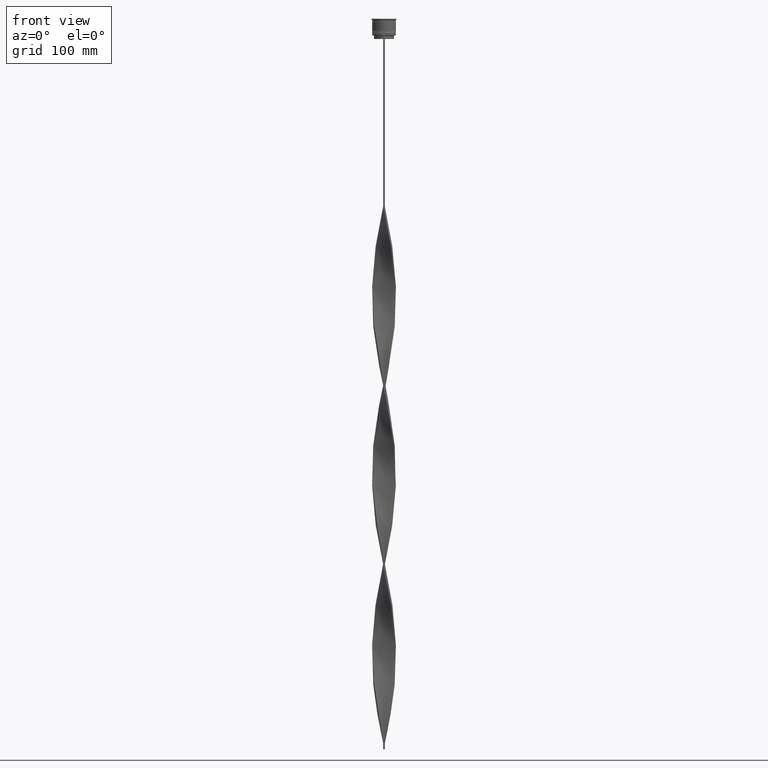
[diagram: clean part render]
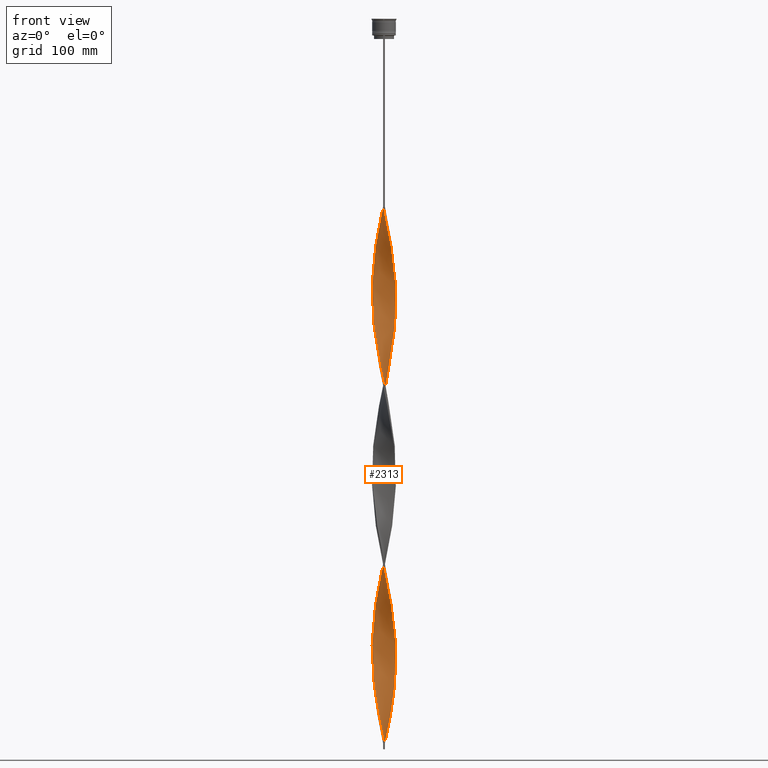
[diagram: same view with one face highlighted and labeled with its STEP entity id]
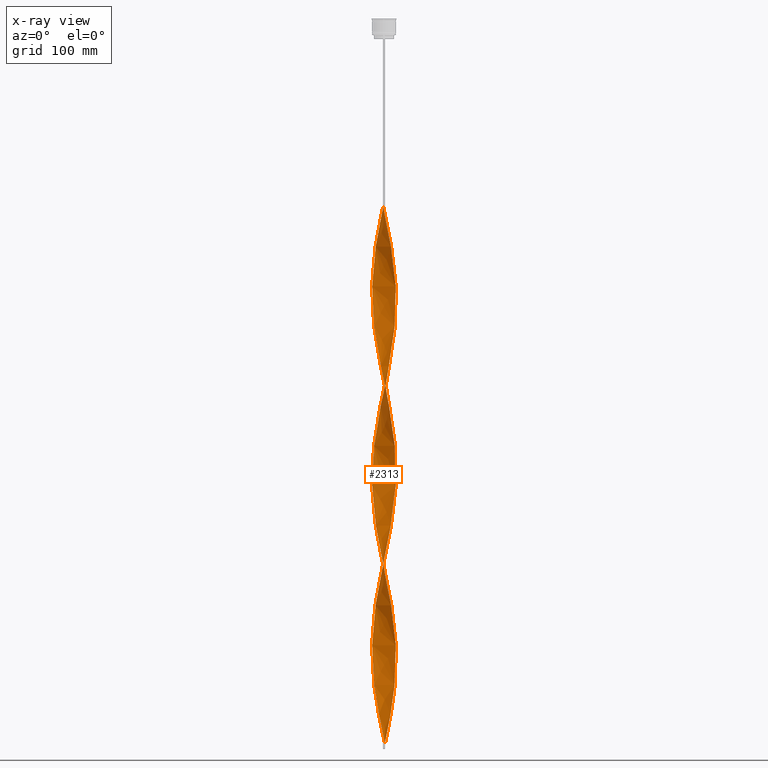
[diagram: x-ray of the same camera — body ghosted, the highlighted face saturated]
A machine part, front view. The second image highlights one B-rep face of the part: STEP entity #2313.
The next image is the same camera in x-ray: the body ghosted, the highlighted face saturated — about 0% of this face is hidden behind the body in this view.
In plain terms, the highlighted face is a freeform B-spline surface patch.
Its self-contained STEP definition (entity closure, byte-faithful):
#13 = CARTESIAN_POINT ( 'NONE',  ( -9.465143979063791235, -3.312634820742006880, -546.3611111111110858 ) ) ;
#21 = CARTESIAN_POINT ( 'NONE',  ( 8.750108451655698616, 4.942682784217356406, -562.0208333333331439 ) ) ;
#35 = CARTESIAN_POINT ( 'NONE',  ( -6.540737725975564132, -7.601397897755384214, -571.4166666666666288 ) ) ;
#39 = CARTESIAN_POINT ( 'NONE',  ( -9.975528918694857694, 1.217921924187934213, -223.7708333333332860 ) ) ;
#40 = CARTESIAN_POINT ( 'NONE',  ( 1.217921924187935101, -9.975528918694866576, -468.0624999999999432 ) ) ;
#62 = CARTESIAN_POINT ( 'NONE',  ( -3.312634820742007769, 9.465143979063791235, -170.5277777777777430 ) ) ;
#63 = CARTESIAN_POINT ( 'NONE',  ( -8.390104474668900636, -5.492599284868775911, -414.8194444444444002 ) ) ;
#86 = CARTESIAN_POINT ( 'NONE',  ( -9.035254037844385522, 4.350480947161671885, -208.1111111111110858 ) ) ;
#87 = CARTESIAN_POINT ( 'NONE',  ( 9.950842402888577354, -1.405434628152383958, -530.7013888888888005 ) ) ;
#109 = CARTESIAN_POINT ( 'NONE',  ( 5.106474812894070681, -8.655543079808074580, -330.2569444444443434 ) ) ;
#111 = CARTESIAN_POINT ( 'NONE',  ( 3.933013133174656506, 9.248022421870029319, -593.3402777777778283 ) ) ;
#112 = CARTESIAN_POINT ( 'NONE',  ( 10.00000000000000533, -0.7500000000000005551, -233.1666666666666288 ) ) ;
#120 = CARTESIAN_POINT ( 'NONE',  ( -0.09456537184761724946, -10.04915759711143508, -161.1319444444444002 ) ) ;
#128 = CARTESIAN_POINT ( 'NONE',  ( -0.09456537184761161507, 10.04915759711142798, -455.5347222222221149 ) ) ;
#129 = CARTESIAN_POINT ( 'NONE',  ( -8.030100497682088445, 6.042515785520206073, -198.7152777777777430 ) ) ;
#130 = CARTESIAN_POINT ( 'NONE',  ( -5.492599284868780352, 8.390104474668897083, -339.6527777777777715 ) ) ;
#151 = CARTESIAN_POINT ( 'NONE',  ( -5.492599284868781240, -8.390104474668889978, -277.0138888888889142 ) ) ;
#152 = CARTESIAN_POINT ( 'NONE',  ( -2.509570238428880273, -9.731216174740287883, -292.6736111111110290 ) ) ;
#153 = CARTESIAN_POINT ( 'NONE',  ( 3.312634820742012653, 9.465143979063796564, -295.8055555555555429 ) ) ;
#171 = CARTESIAN_POINT ( 'NONE',  ( 4.519743973034366036, 8.951782750839054614, -289.5416666666666288 ) ) ;
#183 = CARTESIAN_POINT ( 'NONE',  ( 9.525807899386681044, -3.133924674267438260, -364.7083333333333144 ) ) ;
#184 = CARTESIAN_POINT ( 'NONE',  ( -1.405434628152381515, 9.950842402888570248, -161.1319444444444002 ) ) ;
#185 = CARTESIAN_POINT ( 'NONE',  ( -9.465143979063794788, 3.312634820742017538, -370.9722222222222285 ) ) ;
#195 = CARTESIAN_POINT ( 'NONE',  ( 7.601397897755390431, 6.540737725975568573, -270.7500000000000000 ) ) ;
#205 = CARTESIAN_POINT ( 'NONE',  ( -4.350480947161673662, -9.035254037844383745, -283.2777777777777146 ) ) ;
#206 = CARTESIAN_POINT ( 'NONE',  ( -3.933013133174652065, 9.248022421870022214, -173.6597222222221717 ) ) ;
#207 = CARTESIAN_POINT ( 'NONE',  ( -9.248022421870027543, 3.933013133174656062, -367.8402777777777146 ) ) ;
#213 = CARTESIAN_POINT ( 'NONE',  ( -4.350480947161671885, 9.035254037844394404, -333.3888888888888573 ) ) ;
#223 = CARTESIAN_POINT ( 'NONE',  ( 9.320399624033075980, -3.758279110105986032, -361.5763888888888005 ) ) ;
#224 = CARTESIAN_POINT ( 'NONE',  ( 8.655543079808079909, -5.106474812894076898, -511.9097222222220580 ) ) ;
#249 = CARTESIAN_POINT ( 'NONE',  ( 9.816553969573064364, 2.048845568230869940, -389.7638888888889142 ) ) ;
#250 = CARTESIAN_POINT ( 'NONE',  ( 9.465143979063796564, -3.312634820742011765, -521.3055555555554292 ) ) ;
#264 = CARTESIAN_POINT ( 'NONE',  ( -4.942682784217359071, -8.750108451655691510, -580.8124999999998863 ) ) ;
#265 = CARTESIAN_POINT ( 'NONE',  ( 7.476962331155815988, 6.682629295305624773, -414.8194444444444002 ) ) ;
#266 = CARTESIAN_POINT ( 'NONE',  ( 9.731216174740296765, 2.509570238428878053, -549.4930555555554292 ) ) ;
#280 = CARTESIAN_POINT ( 'NONE',  ( -8.285254037844385522, -5.649519052838325450, -558.8888888888889142 ) ) ;
#281 = CARTESIAN_POINT ( 'NONE',  ( 4.350480947161674550, 9.035254037844383745, -433.6111111111110858 ) ) ;
#282 = CARTESIAN_POINT ( 'NONE',  ( -5.649519052838336108, -8.285254037844387298, -433.6111111111110858 ) ) ;
#287 = CARTESIAN_POINT ( 'NONE',  ( -7.476962331155814212, 6.682629295305638095, -352.1805555555554861 ) ) ;
#308 = CARTESIAN_POINT ( 'NONE',  ( -9.465143979063791235, -3.312634820742006880, -546.3611111111110858 ) ) ;
#309 = CARTESIAN_POINT ( 'NONE',  ( 10.01234325790314195, -0.5616782761701673010, -377.2361111111110858 ) ) ;
#310 = CARTESIAN_POINT ( 'NONE',  ( -9.320399624033083086, -3.758279110105986032, -405.4236111111110858 ) ) ;
#315 = CARTESIAN_POINT ( 'NONE',  ( 7.038959666430927520, -7.172695297828685312, -198.7152777777777430 ) ) ;
#331 = LINE ( 'NONE', #759, #829 ) ;
#333 = CARTESIAN_POINT ( 'NONE',  ( 1.405434628152387289, 9.950842402888575577, -605.8680555555555429 ) ) ;
#337 = CARTESIAN_POINT ( 'NONE',  ( -9.465143979063791235, -3.312634820742006880, -245.6944444444444287 ) ) ;
#338 = CARTESIAN_POINT ( 'NONE',  ( 2.509570238428880273, -9.731216174740296765, -474.3263888888889142 ) ) ;
#350 = DIRECTION ( 'NONE',  ( 0.000000000000000000, 1.000000000000000000, 0.000000000000000000 ) ) ;
#352 = CARTESIAN_POINT ( 'NONE',  ( -10.04915759711142798, -0.09456537184761565351, -530.7013888888888005 ) ) ;
#358 = CARTESIAN_POINT ( 'NONE',  ( 9.816553969573071470, -2.048845568230875269, -527.5694444444444571 ) ) ;
#382 = CARTESIAN_POINT ( 'NONE',  ( -4.519743973034361595, 8.951782750839049285, -176.7916666666666572 ) ) ;
#383 = CARTESIAN_POINT ( 'NONE',  ( -9.731216174740296765, -2.509570238428879385, -399.1597222222221149 ) ) ;
#384 = CARTESIAN_POINT ( 'NONE',  ( 3.758279110105988696, -9.320399624033083086, -179.9236111111110574 ) ) ;
#398 = CARTESIAN_POINT ( 'NONE',  ( -7.914964995880700016, -6.192563292782582884, -562.0208333333331439 ) ) ;
#403 = CARTESIAN_POINT ( 'NONE',  ( -9.248022421870029319, 3.933013133174656506, -367.8402777777777146 ) ) ;
#417 = CARTESIAN_POINT ( 'NONE',  ( -6.042515785520206073, -8.030100497682088445, -574.5486111111111995 ) ) ;
#421 = CARTESIAN_POINT ( 'NONE',  ( -0.7499999999999997780, 9.999999999999998224, -157.9999999999999716 ) ) ;
#422 = CARTESIAN_POINT ( 'NONE',  ( 8.655543079808081686, -5.106474812894077786, -511.9097222222220580 ) ) ;
#424 =( BOUNDED_CURVE ( )  B_SPLINE_CURVE ( 2, ( #421, #2485, #2814, #1436, #62, #1130, #382, #3954, #2901, #3552, #2504, #788, #2466, #3182, #1783, #3243, #86, #1419, #4238, #1039, #2837, #39, #3885, #719, #3864, #1485, #2118, #2098, #337, #4256, #3904, #2856, #2445, #3530, #3509, #740, #4278, #699, #151, #474, #205, #1149, #3697, #3974, #882, #905, #2979, #1930, #1584, #2280, #1879, #1242, #521, #450, #4072, #109, #2309, #1528, #1220, #3650, #1199, #3003, #551, #4049, #3351, #2548, #183, #1560, #1172, #3723, #2205, #3372, #1950, #1607, #4325, #836, #2598, #4421, #1853, #809, #4394, #497, #3618, #3675, #1507, #3272, #2646, #2923, #4344, #2569, #4029, #3998, #2622, #2235, #3296, #128, #2945, #4367, #3318, #863, #2259, #1901, #1348, #3084, #3455, #3791, #639, #952, #970, #3436, #3068, #994, #1973, #3049, #3394, #3764, #4139, #4487, #4444, #2416, #3417, #2376, #4504, #2351, #308, #2041, #1667, #4181, #280, #571, #1623, #621, #1013, #1306, #3743, #264, #2397, #3810, #2023, #1685, #3025, #3107, #4528, #3480, #2714 ),
 .UNSPECIFIED., .F., .T. ) 
 B_SPLINE_CURVE_WITH_KNOTS ( ( 3, 2, 2, 2, 2, 2, 2, 2, 2, 2, 2, 2, 2, 2, 2, 2, 2, 2, 2, 2, 2, 2, 2, 2, 2, 2, 2, 2, 2, 2, 2, 2, 2, 2, 2, 2, 2, 2, 2, 2, 2, 2, 2, 2, 2, 2, 2, 2, 2, 2, 2, 2, 2, 2, 2, 2, 2, 2, 2, 2, 2, 2, 2, 2, 2, 2, 2, 2, 2, 2, 2, 2, 3 ),
 ( 0.000000000000000000, 0.01041666666666666609, 0.02083333333333333218, 0.03125000000000000000, 0.04166666666666666435, 0.05208333333333333565, 0.06250000000000000000, 0.07291666666666667129, 0.08333333333333332871, 0.09375000000000000000, 0.1041666666666666713, 0.1145833333333333287, 0.1250000000000000000, 0.1354166666666666574, 0.1458333333333333426, 0.1562500000000000000, 0.1666666666666666574, 0.1770833333333333426, 0.1875000000000000000, 0.1979166666666666574, 0.2083333333333333426, 0.2187500000000000000, 0.2291666666666666574, 0.2395833333333333426, 0.2500000000000000000, 0.2604166666666666852, 0.2708333333333333148, 0.2812500000000000000, 0.2916666666666666852, 0.3020833333333333148, 0.3125000000000000000, 0.3229166666666666852, 0.3333333333333333148, 0.3437500000000000000, 0.3541666666666666852, 0.3645833333333333148, 0.3750000000000000000, 0.3854166666666666852, 0.3958333333333333148, 0.4062500000000000000, 0.4166666666666666852, 0.4270833333333333148, 0.4375000000000000000, 0.4479166666666666852, 0.4583333333333333148, 0.4687500000000000000, 0.4791666666666666852, 0.4895833333333333148, 0.5000000000000000000, 0.5104166666666666297, 0.5208333333333333703, 0.5312500000000000000, 0.5416666666666666297, 0.5520833333333333703, 0.5625000000000000000, 0.5729166666666666297, 0.5833333333333333703, 0.5937500000000000000, 0.6041666666666666297, 0.6145833333333333703, 0.6250000000000000000, 0.6354166666666666297, 0.6458333333333333703, 0.6562500000000000000, 0.6666666666666666297, 0.6770833333333333703, 0.6875000000000000000, 0.6979166666666666297, 0.7083333333333333703, 0.7187500000000000000, 0.7291666666666666297, 0.7395833333333333703, 0.7500000000000000000 ),
 .UNSPECIFIED. ) 
 CURVE ( )  GEOMETRIC_REPRESENTATION_ITEM ( )  RATIONAL_B_SPLINE_CURVE ( ( 1.000000000000000000, 0.9978589232386034791, 1.000000000000000000, 0.9978589232386034791, 1.000000000000000000, 0.9978589232386034791, 1.000000000000000000, 0.9978589232386034791, 1.000000000000000000, 0.9978589232386034791, 1.000000000000000000, 0.9978589232386034791, 1.000000000000000000, 0.9978589232386034791, 1.000000000000000000, 0.9978589232386034791, 1.000000000000000000, 0.9978589232386034791, 1.000000000000000000, 0.9978589232386034791, 1.000000000000000000, 0.9978589232386034791, 1.000000000000000000, 0.9978589232386034791, 1.000000000000000000, 0.9978589232386034791, 1.000000000000000000, 0.9978589232386034791, 1.000000000000000000, 0.9978589232386034791, 1.000000000000000000, 0.9978589232386034791, 1.000000000000000000, 0.9978589232386034791, 1.000000000000000000, 0.9978589232386034791, 1.000000000000000000, 0.9978589232386034791, 1.000000000000000000, 0.9978589232386034791, 1.000000000000000000, 0.9978589232386034791, 1.000000000000000000, 0.9978589232386034791, 1.000000000000000000, 0.9978589232386034791, 1.000000000000000000, 0.9978589232386034791, 1.000000000000000000, 0.9978589232386034791, 1.000000000000000000, 0.9978589232386034791, 1.000000000000000000, 0.9978589232386034791, 1.000000000000000000, 0.9978589232386034791, 1.000000000000000000, 0.9978589232386034791, 1.000000000000000000, 0.9978589232386034791, 1.000000000000000000, 0.9978589232386034791, 1.000000000000000000, 0.9978589232386034791, 1.000000000000000000, 0.9978589232386034791, 1.000000000000000000, 0.9978589232386034791, 1.000000000000000000, 0.9978589232386034791, 1.000000000000000000, 0.9978589232386034791, 1.000000000000000000, 0.9978589232386034791, 1.000000000000000000, 0.9978589232386034791, 1.000000000000000000, 0.9978589232386034791, 1.000000000000000000, 0.9978589232386034791, 1.000000000000000000, 0.9978589232386034791, 1.000000000000000000, 0.9978589232386034791, 1.000000000000000000, 0.9978589232386034791, 1.000000000000000000, 0.9978589232386034791, 1.000000000000000000, 0.9978589232386034791, 1.000000000000000000, 0.9978589232386034791, 1.000000000000000000, 0.9978589232386034791, 1.000000000000000000, 0.9978589232386034791, 1.000000000000000000, 0.9978589232386034791, 1.000000000000000000, 0.9978589232386034791, 1.000000000000000000, 0.9978589232386034791, 1.000000000000000000, 0.9978589232386034791, 1.000000000000000000, 0.9978589232386034791, 1.000000000000000000, 0.9978589232386034791, 1.000000000000000000, 0.9978589232386034791, 1.000000000000000000, 0.9978589232386034791, 1.000000000000000000, 0.9978589232386034791, 1.000000000000000000, 0.9978589232386034791, 1.000000000000000000, 0.9978589232386034791, 1.000000000000000000, 0.9978589232386034791, 1.000000000000000000, 0.9978589232386034791, 1.000000000000000000, 0.9978589232386034791, 1.000000000000000000, 0.9978589232386034791, 1.000000000000000000, 0.9978589232386034791, 1.000000000000000000, 0.9978589232386034791, 1.000000000000000000, 0.9978589232386034791, 1.000000000000000000, 0.9978589232386034791, 1.000000000000000000, 0.9978589232386034791, 1.000000000000000000, 0.9978589232386034791, 1.000000000000000000, 0.9978589232386034791, 1.000000000000000000, 0.9978589232386034791, 1.000000000000000000, 0.9978589232386034791, 1.000000000000000000 ) ) 
 REPRESENTATION_ITEM ( '' )  );
#450 = CARTESIAN_POINT ( 'NONE',  ( 3.933013133174646736, -9.248022421870025767, -323.9930555555555998 ) ) ;
#451 = CARTESIAN_POINT ( 'NONE',  ( -9.465143979063791235, -3.312634820742006880, -245.6944444444444287 ) ) ;
#474 = CARTESIAN_POINT ( 'NONE',  ( -4.942682784217359071, -8.750108451655691510, -280.1458333333333144 ) ) ;
#475 = CARTESIAN_POINT ( 'NONE',  ( -1.863746081308408575, -9.853372546717571012, -295.8055555555555429 ) ) ;
#476 = CARTESIAN_POINT ( 'NONE',  ( 9.525807899386691702, 3.133924674267432042, -251.9583333333332860 ) ) ;
#497 = CARTESIAN_POINT ( 'NONE',  ( 7.914964995880699128, 6.192563292782581108, -411.6875000000000000 ) ) ;
#498 = CARTESIAN_POINT ( 'NONE',  ( 1.405434628152387067, 9.950842402888577354, -605.8680555555556566 ) ) ;
#499 = CARTESIAN_POINT ( 'NONE',  ( -7.914964995880697352, 6.192563292782595319, -355.3124999999999432 ) ) ;
#521 = CARTESIAN_POINT ( 'NONE',  ( 3.312634820742003772, -9.465143979063794788, -320.8611111111110858 ) ) ;
#522 = CARTESIAN_POINT ( 'NONE',  ( -9.950842402888570248, -1.405434628152380183, -236.2986111111110574 ) ) ;
#524 = CARTESIAN_POINT ( 'NONE',  ( 9.816553969573071470, -2.048845568230875713, -226.9027777777777715 ) ) ;
#536 = CARTESIAN_POINT ( 'NONE',  ( 0.7500000000000011102, 10.00000000000000533, -609.0000000000000000 ) ) ;
#542 = CARTESIAN_POINT ( 'NONE',  ( 9.035254037844392627, 4.350480947161671885, -258.2222222222221717 ) ) ;
#551 = CARTESIAN_POINT ( 'NONE',  ( 8.390104474668889978, -5.492599284868781240, -352.1805555555554861 ) ) ;
#552 = CARTESIAN_POINT ( 'NONE',  ( -9.731216174740287883, 2.509570238428879385, -217.5069444444443718 ) ) ;
#553 = CARTESIAN_POINT ( 'NONE',  ( 4.519743973034366036, 8.951782750839054614, -289.5416666666666288 ) ) ;
#562 = CARTESIAN_POINT ( 'NONE',  ( 6.192563292782590878, 7.914964995880701792, -280.1458333333333144 ) ) ;
#571 = CARTESIAN_POINT ( 'NONE',  ( -7.914964995880699128, -6.192563292782581996, -562.0208333333331439 ) ) ;
#572 = CARTESIAN_POINT ( 'NONE',  ( 2.048845568230870828, -9.816553969573064364, -314.5972222222221717 ) ) ;
#573 = CARTESIAN_POINT ( 'NONE',  ( 8.285254037844389075, -5.649519052838332556, -508.7777777777777715 ) ) ;
#594 = CARTESIAN_POINT ( 'NONE',  ( -8.390104474668891754, 5.492599284868779463, -502.5138888888889142 ) ) ;
#595 = CARTESIAN_POINT ( 'NONE',  ( 2.509570238428879829, -9.731216174740296765, -474.3263888888889142 ) ) ;
#621 = CARTESIAN_POINT ( 'NONE',  ( -7.038959666430926632, -7.172695297828676431, -568.2847222222221717 ) ) ;
#623 = CARTESIAN_POINT ( 'NONE',  ( -5.106474812894072457, 8.655543079808076357, -480.5902777777776578 ) ) ;
#624 = CARTESIAN_POINT ( 'NONE',  ( 9.248022421870027543, -3.933013133174655174, -518.1736111111110858 ) ) ;
#639 = CARTESIAN_POINT ( 'NONE',  ( -6.682629295305630102, 7.476962331155812436, -489.9861111111111427 ) ) ;
#640 = CARTESIAN_POINT ( 'NONE',  ( 7.601397897755380662, -6.540737725975567685, -345.9166666666666288 ) ) ;
#641 = CARTESIAN_POINT ( 'NONE',  ( 6.682629295305638095, 7.476962331155813324, -577.6805555555555429 ) ) ;
#649 = CARTESIAN_POINT ( 'NONE',  ( 9.248022421870029319, -3.933013133174655618, -217.5069444444443718 ) ) ;
#662 = CARTESIAN_POINT ( 'NONE',  ( -9.320399624033075980, 3.758279110105987808, -511.9097222222220580 ) ) ;
#663 = CARTESIAN_POINT ( 'NONE',  ( 5.492599284868782128, -8.390104474668898860, -489.9861111111111427 ) ) ;
#669 = CARTESIAN_POINT ( 'NONE',  ( -7.914964995880697352, 6.192563292782595319, -355.3124999999998863 ) ) ;
#687 = CARTESIAN_POINT ( 'NONE',  ( 0.7500000000000011102, 10.00000000000000533, -609.0000000000000000 ) ) ;
#694 = CARTESIAN_POINT ( 'NONE',  ( -4.350480947161673662, -9.035254037844383745, -583.9444444444443434 ) ) ;
#695 = CARTESIAN_POINT ( 'NONE',  ( 3.933013133174656062, 9.248022421870027543, -593.3402777777777146 ) ) ;
#699 = CARTESIAN_POINT ( 'NONE',  ( -6.042515785520205185, -8.030100497682088445, -273.8819444444443434 ) ) ;
#700 = CARTESIAN_POINT ( 'NONE',  ( 9.682265536257565586, -2.692256508309367025, -223.7708333333332575 ) ) ;
#719 = CARTESIAN_POINT ( 'NONE',  ( -10.04915759711142798, -0.09456537184761565351, -230.0347222222222001 ) ) ;
#720 = CARTESIAN_POINT ( 'NONE',  ( -9.035254037844394404, -4.350480947161667444, -408.5555555555555429 ) ) ;
#735 = CARTESIAN_POINT ( 'NONE',  ( -9.999999999999998224, -0.7499999999999991118, -533.8333333333333712 ) ) ;
#740 = CARTESIAN_POINT ( 'NONE',  ( -7.038959666430926632, -7.172695297828676431, -267.6180555555554861 ) ) ;
#741 = CARTESIAN_POINT ( 'NONE',  ( 9.465143979063796564, -3.312634820742011765, -521.3055555555554292 ) ) ;
#759 = CARTESIAN_POINT ( 'NONE',  ( -0.7499999999999997780, -10.00000000000000533, -157.9999999999999716 ) ) ;
#760 = CARTESIAN_POINT ( 'NONE',  ( -5.492599284868781240, -8.390104474668889978, -577.6805555555555429 ) ) ;
#769 = CARTESIAN_POINT ( 'NONE',  ( -9.465143979063794788, 3.312634820742017538, -370.9722222222222285 ) ) ;
#788 = CARTESIAN_POINT ( 'NONE',  ( -7.172695297828679983, 7.038959666430923079, -192.4513888888888289 ) ) ;
#789 = CARTESIAN_POINT ( 'NONE',  ( -8.030100497682097327, -6.042515785520205185, -417.9513888888888005 ) ) ;
#809 = CARTESIAN_POINT ( 'NONE',  ( 8.655543079808074580, 5.106474812894070681, -405.4236111111110858 ) ) ;
#810 = CARTESIAN_POINT ( 'NONE',  ( 9.731216174740296765, 2.509570238428878497, -549.4930555555553156 ) ) ;
#829 = VECTOR ( 'NONE', #350, 1000.000000000000000 ) ;
#836 = CARTESIAN_POINT ( 'NONE',  ( 9.682265536257562033, 2.692256508309355922, -392.8958333333332575 ) ) ;
#837 = CARTESIAN_POINT ( 'NONE',  ( -7.172695297828679983, 7.038959666430923967, -192.4513888888888289 ) ) ;
#838 = CARTESIAN_POINT ( 'NONE',  ( 6.540737725975569461, -7.601397897755390431, -195.5833333333333144 ) ) ;
#863 = CARTESIAN_POINT ( 'NONE',  ( -2.692256508309364360, 9.682265536257558480, -468.0624999999999432 ) ) ;
#864 = CARTESIAN_POINT ( 'NONE',  ( 6.192563292782590878, 7.914964995880701792, -580.8124999999998863 ) ) ;
#865 = CARTESIAN_POINT ( 'NONE',  ( -7.038959666430926632, 7.172695297828686201, -349.0486111111110858 ) ) ;
#882 = CARTESIAN_POINT ( 'NONE',  ( -1.863746081308408575, -9.853372546717571012, -295.8055555555555429 ) ) ;
#884 = CARTESIAN_POINT ( 'NONE',  ( -9.525807899386684596, 3.133924674267432930, -214.3749999999999716 ) ) ;
#885 = CARTESIAN_POINT ( 'NONE',  ( 1.405434628152387289, 9.950842402888575577, -305.2013888888888573 ) ) ;
#893 = CARTESIAN_POINT ( 'NONE',  ( 6.042515785520209626, -8.030100497682095551, -192.4513888888888289 ) ) ;
#905 = CARTESIAN_POINT ( 'NONE',  ( -1.217921924187937099, -9.975528918694857694, -298.9374999999999432 ) ) ;
#906 = CARTESIAN_POINT ( 'NONE',  ( 0.7499999999999985567, -9.999999999999998224, -308.3333333333333712 ) ) ;
#908 = CARTESIAN_POINT ( 'NONE',  ( 10.04915759711143508, -0.09456537184761866499, -236.2986111111110574 ) ) ;
#923 = CARTESIAN_POINT ( 'NONE',  ( 9.465143979063796564, -3.312634820742011765, -220.6388888888888857 ) ) ;
#932 = CARTESIAN_POINT ( 'NONE',  ( -2.692256508309364360, 9.682265536257558480, -468.0624999999999432 ) ) ;
#933 = CARTESIAN_POINT ( 'NONE',  ( -1.863746081308403468, 9.853372546717578118, -320.8611111111110858 ) ) ;
#952 = CARTESIAN_POINT ( 'NONE',  ( -7.172695297828679983, 7.038959666430923079, -493.1180555555555429 ) ) ;
#953 = CARTESIAN_POINT ( 'NONE',  ( -3.933013133174652065, 9.248022421870022214, -474.3263888888889142 ) ) ;
#954 = CARTESIAN_POINT ( 'NONE',  ( -9.035254037844394404, -4.350480947161666556, -408.5555555555555429 ) ) ;
#970 = CARTESIAN_POINT ( 'NONE',  ( -7.601397897755385102, 6.540737725975564132, -496.2499999999999432 ) ) ;
#971 = CARTESIAN_POINT ( 'NONE',  ( 7.172695297828676431, -7.038959666430927520, -342.7847222222222285 ) ) ;
#972 = CARTESIAN_POINT ( 'NONE',  ( 7.038959666430926632, -7.172695297828685312, -499.3819444444444002 ) ) ;
#994 = CARTESIAN_POINT ( 'NONE',  ( -8.750108451655689734, 4.942682784217357295, -505.6458333333333712 ) ) ;
#995 = CARTESIAN_POINT ( 'NONE',  ( 9.950842402888573801, 1.405434628152374854, -386.6319444444444571 ) ) ;
#996 = CARTESIAN_POINT ( 'NONE',  ( -3.312634820742017983, -9.465143979063794788, -446.1388888888888573 ) ) ;
#1002 = CARTESIAN_POINT ( 'NONE',  ( 9.320399624033084862, 3.758279110105986920, -255.0902777777776862 ) ) ;
#1011 = CARTESIAN_POINT ( 'NONE',  ( 0.7499999999999985567, -9.999999999999998224, -609.0000000000000000 ) ) ;
#1013 = CARTESIAN_POINT ( 'NONE',  ( -6.540737725975564132, -7.601397897755384214, -571.4166666666666288 ) ) ;
#1014 = CARTESIAN_POINT ( 'NONE',  ( -7.601397897755385102, 6.540737725975564132, -496.2499999999999432 ) ) ;
#1015 = CARTESIAN_POINT ( 'NONE',  ( 6.042515785520208738, -8.030100497682095551, -493.1180555555555429 ) ) ;
#1021 = CARTESIAN_POINT ( 'NONE',  ( 2.048845568230878378, 9.816553969573071470, -302.0694444444444002 ) ) ;
#1034 = CARTESIAN_POINT ( 'NONE',  ( -9.816553969573064364, -2.048845568230871272, -540.0972222222221717 ) ) ;
#1035 = CARTESIAN_POINT ( 'NONE',  ( 6.540737725975569461, -7.601397897755390431, -496.2499999999999432 ) ) ;
#1039 = CARTESIAN_POINT ( 'NONE',  ( -9.731216174740287883, 2.509570238428879385, -217.5069444444443718 ) ) ;
#1040 = CARTESIAN_POINT ( 'NONE',  ( 4.350480947161672773, -9.035254037844392627, -183.0555555555555145 ) ) ;
#1060 = CARTESIAN_POINT ( 'NONE',  ( -2.509570238428880273, -9.731216174740287883, -593.3402777777778283 ) ) ;
#1061 = CARTESIAN_POINT ( 'NONE',  ( 5.649519052838335220, 8.285254037844389075, -583.9444444444443434 ) ) ;
#1066 = CARTESIAN_POINT ( 'NONE',  ( 9.248022421870029319, -3.933013133174655618, -518.1736111111110858 ) ) ;
#1080 = CARTESIAN_POINT ( 'NONE',  ( -9.950842402888570248, -1.405434628152380183, -536.9652777777778283 ) ) ;
#1085 = CARTESIAN_POINT ( 'NONE',  ( 5.492599284868782128, -8.390104474668898860, -489.9861111111111427 ) ) ;
#1086 = CARTESIAN_POINT ( 'NONE',  ( 2.509570238428879829, -9.731216174740296765, -173.6597222222221717 ) ) ;
#1106 = CARTESIAN_POINT ( 'NONE',  ( -9.950842402888577354, 1.405434628152387511, -380.3680555555554861 ) ) ;
#1130 = CARTESIAN_POINT ( 'NONE',  ( -3.933013133174651621, 9.248022421870022214, -173.6597222222221717 ) ) ;
#1132 = CARTESIAN_POINT ( 'NONE',  ( -5.106474812894085780, -8.655543079808074580, -436.7430555555554861 ) ) ;
#1149 = CARTESIAN_POINT ( 'NONE',  ( -3.758279110105989584, -9.320399624033075980, -286.4097222222221717 ) ) ;
#1150 = CARTESIAN_POINT ( 'NONE',  ( 10.04915759711143508, -0.09456537184761855397, -536.9652777777778283 ) ) ;
#1172 = CARTESIAN_POINT ( 'NONE',  ( 9.853372546717571012, -1.863746081308413904, -370.9722222222222285 ) ) ;
#1173 = CARTESIAN_POINT ( 'NONE',  ( -3.758279110105989584, -9.320399624033075980, -286.4097222222221717 ) ) ;
#1174 = CARTESIAN_POINT ( 'NONE',  ( -4.350480947161670997, 9.035254037844394404, -333.3888888888888573 ) ) ;
#1199 = CARTESIAN_POINT ( 'NONE',  ( 7.601397897755380662, -6.540737725975567685, -345.9166666666666288 ) ) ;
#1200 = CARTESIAN_POINT ( 'NONE',  ( -6.682629295305630102, 7.476962331155812436, -189.3194444444444287 ) ) ;
#1201 = CARTESIAN_POINT ( 'NONE',  ( 9.950842402888575577, -1.405434628152384402, -230.0347222222222001 ) ) ;
#1220 = CARTESIAN_POINT ( 'NONE',  ( 6.682629295305628325, -7.476962331155812436, -339.6527777777777715 ) ) ;
#1221 = CARTESIAN_POINT ( 'NONE',  ( 8.030100497682097327, 6.042515785520205185, -568.2847222222220580 ) ) ;
#1222 = CARTESIAN_POINT ( 'NONE',  ( 6.682629295305638095, 7.476962331155813324, -277.0138888888889142 ) ) ;
#1232 = CARTESIAN_POINT ( 'NONE',  ( 7.914964995880703569, -6.192563292782589990, -204.9791666666666288 ) ) ;
#1242 = CARTESIAN_POINT ( 'NONE',  ( 2.692256508309361251, -9.682265536257560257, -317.7291666666665719 ) ) ;
#1243 = CARTESIAN_POINT ( 'NONE',  ( 0.09456537184761269754, -10.04915759711142798, -305.2013888888888573 ) ) ;
#1244 = CARTESIAN_POINT ( 'NONE',  ( 7.172695297828685312, 7.038959666430926632, -273.8819444444443434 ) ) ;
#1253 = CARTESIAN_POINT ( 'NONE',  ( 8.030100497682097327, 6.042515785520205185, -267.6180555555555429 ) ) ;
#1266 = CARTESIAN_POINT ( 'NONE',  ( -4.942682784217359071, -8.750108451655691510, -280.1458333333333144 ) ) ;
#1268 = CARTESIAN_POINT ( 'NONE',  ( 9.248022421870027543, -3.933013133174655174, -217.5069444444443718 ) ) ;
#1289 = CARTESIAN_POINT ( 'NONE',  ( 6.042515785520210514, 8.030100497682084892, -424.2152777777777146 ) ) ;
#1290 = CARTESIAN_POINT ( 'NONE',  ( -9.525807899386691702, -3.133924674267428490, -402.2916666666666856 ) ) ;
#1306 = CARTESIAN_POINT ( 'NONE',  ( -6.042515785520205185, -8.030100497682088445, -574.5486111111110858 ) ) ;
#1307 = CARTESIAN_POINT ( 'NONE',  ( 9.525807899386681044, -3.133924674267438260, -364.7083333333333144 ) ) ;
#1308 = CARTESIAN_POINT ( 'NONE',  ( -8.390104474668900636, -5.492599284868775911, -414.8194444444444002 ) ) ;
#1325 = CARTESIAN_POINT ( 'NONE',  ( 10.04915759711142798, 0.09456537184761215631, -380.3680555555554861 ) ) ;
#1326 = CARTESIAN_POINT ( 'NONE',  ( 7.601397897755390431, 6.540737725975568573, -571.4166666666666288 ) ) ;
#1333 = CARTESIAN_POINT ( 'NONE',  ( 5.106474812894080451, 8.655543079808079909, -286.4097222222221717 ) ) ;
#1348 = CARTESIAN_POINT ( 'NONE',  ( -4.519743973034361595, 8.951782750839049285, -477.4583333333333144 ) ) ;
#1349 = CARTESIAN_POINT ( 'NONE',  ( -7.172695297828679983, 7.038959666430923967, -493.1180555555555998 ) ) ;
#1350 = CARTESIAN_POINT ( 'NONE',  ( -3.933013133174656950, -9.248022421870027543, -443.0069444444444002 ) ) ;
#1355 = CARTESIAN_POINT ( 'NONE',  ( 1.863746081308407909, -9.853372546717579894, -170.5277777777777430 ) ) ;
#1369 = CARTESIAN_POINT ( 'NONE',  ( -2.048845568230873049, 9.816553969573064364, -464.9305555555555429 ) ) ;
#1370 = CARTESIAN_POINT ( 'NONE',  ( -6.192563292782595319, -7.914964995880695575, -430.4791666666666288 ) ) ;
#1375 = CARTESIAN_POINT ( 'NONE',  ( 3.133924674267435151, -9.525807899386689925, -176.7916666666666572 ) ) ;
#1381 = ORIENTED_EDGE ( 'NONE', *, *, #4152, .F. ) ;
#1395 = CARTESIAN_POINT ( 'NONE',  ( 7.476962331155815988, -6.682629295305636319, -502.5138888888889142 ) ) ;
#1415 = CARTESIAN_POINT ( 'NONE',  ( -3.758279110105989584, -9.320399624033075980, -587.0763888888889142 ) ) ;
#1419 = CARTESIAN_POINT ( 'NONE',  ( -9.320399624033075980, 3.758279110105987808, -211.2430555555555145 ) ) ;
#1420 = CARTESIAN_POINT ( 'NONE',  ( -4.519743973034370477, -8.951782750839052838, -439.8749999999999432 ) ) ;
#1421 = CARTESIAN_POINT ( 'NONE',  ( 1.863746081308407687, -9.853372546717579894, -170.5277777777777430 ) ) ;
#1436 = CARTESIAN_POINT ( 'NONE',  ( -2.692256508309364360, 9.682265536257558480, -167.3958333333332860 ) ) ;
#1437 = CARTESIAN_POINT ( 'NONE',  ( -3.933013133174656950, -9.248022421870029319, -443.0069444444444002 ) ) ;
#1458 = CARTESIAN_POINT ( 'NONE',  ( -6.682629295305638983, -7.476962331155813324, -427.3472222222222285 ) ) ;
#1485 = CARTESIAN_POINT ( 'NONE',  ( -9.950842402888570248, -1.405434628152380183, -236.2986111111110574 ) ) ;
#1486 = CARTESIAN_POINT ( 'NONE',  ( 10.00000000000000533, -0.7500000000000004441, -533.8333333333333712 ) ) ;
#1487 = CARTESIAN_POINT ( 'NONE',  ( -0.09456537184761737436, -10.04915759711143508, -161.1319444444444002 ) ) ;
#1507 = CARTESIAN_POINT ( 'NONE',  ( 6.540737725975565020, 7.601397897755383326, -421.0833333333333144 ) ) ;
#1508 = CARTESIAN_POINT ( 'NONE',  ( 7.172695297828685312, 7.038959666430927520, -574.5486111111111995 ) ) ;
#1509 = CARTESIAN_POINT ( 'NONE',  ( 5.649519052838335220, 8.285254037844389075, -283.2777777777777146 ) ) ;
#1528 = CARTESIAN_POINT ( 'NONE',  ( 6.192563292782581996, -7.914964995880699128, -336.5208333333332575 ) ) ;
#1529 = CARTESIAN_POINT ( 'NONE',  ( -5.649519052838327227, 8.285254037844385522, -183.0555555555555145 ) ) ;
#1530 = CARTESIAN_POINT ( 'NONE',  ( 2.692256508309370133, 9.682265536257565586, -298.9374999999999432 ) ) ;
#1560 = CARTESIAN_POINT ( 'NONE',  ( 9.731216174740287883, -2.509570238428880273, -367.8402777777777146 ) ) ;
#1561 = CARTESIAN_POINT ( 'NONE',  ( -7.914964995880700016, -6.192563292782582884, -261.3541666666666856 ) ) ;
#1562 = CARTESIAN_POINT ( 'NONE',  ( -8.285254037844389075, 5.649519052838336108, -358.4444444444444571 ) ) ;
#1573 = CARTESIAN_POINT ( 'NONE',  ( 1.405434628152387067, 9.950842402888577354, -305.2013888888888573 ) ) ;
#1584 = CARTESIAN_POINT ( 'NONE',  ( 0.7499999999999985567, -9.999999999999998224, -308.3333333333333712 ) ) ;
#1585 = CARTESIAN_POINT ( 'NONE',  ( -6.042515785520206073, -8.030100497682088445, -273.8819444444444002 ) ) ;
#1586 = CARTESIAN_POINT ( 'NONE',  ( -9.816553969573067917, 2.048845568230882819, -377.2361111111110858 ) ) ;
#1596 = CARTESIAN_POINT ( 'NONE',  ( -0.5616782761701561988, 10.01234325790314905, -314.5972222222221717 ) ) ;
#1607 = CARTESIAN_POINT ( 'NONE',  ( 9.950842402888572025, 1.405434628152375076, -386.6319444444444571 ) ) ;
#1608 = CARTESIAN_POINT ( 'NONE',  ( -8.285254037844385522, -5.649519052838325450, -258.2222222222221717 ) ) ;
#1609 = CARTESIAN_POINT ( 'NONE',  ( -9.950842402888575577, 1.405434628152387955, -380.3680555555554861 ) ) ;
#1623 = CARTESIAN_POINT ( 'NONE',  ( -7.476962331155812436, -6.682629295305628325, -565.1527777777778283 ) ) ;
#1625 = CARTESIAN_POINT ( 'NONE',  ( 9.853372546717571012, -1.863746081308413904, -370.9722222222222285 ) ) ;
#1627 = CARTESIAN_POINT ( 'NONE',  ( 8.951782750839054614, -4.519743973034365148, -515.0416666666666288 ) ) ;
#1648 = CARTESIAN_POINT ( 'NONE',  ( 9.035254037844383745, -4.350480947161674550, -358.4444444444444571 ) ) ;
#1649 = CARTESIAN_POINT ( 'NONE',  ( 1.863746081308407687, -9.853372546717579894, -471.1944444444444002 ) ) ;
#1657 = ORIENTED_EDGE ( 'NONE', *, *, #3076, .T. ) ;
#1667 = CARTESIAN_POINT ( 'NONE',  ( -8.951782750839049285, -4.519743973034358930, -552.6249999999998863 ) ) ;
#1668 = CARTESIAN_POINT ( 'NONE',  ( 3.758279110105994913, 9.320399624033074204, -436.7430555555554861 ) ) ;
#1669 = CARTESIAN_POINT ( 'NONE',  ( -7.601397897755391320, -6.540737725975566796, -421.0833333333333144 ) ) ;
#1674 = CARTESIAN_POINT ( 'NONE',  ( -4.942682784217356406, 8.750108451655700392, -336.5208333333332575 ) ) ;
#1685 = CARTESIAN_POINT ( 'NONE',  ( -2.509570238428880273, -9.731216174740287883, -593.3402777777777146 ) ) ;
#1686 = CARTESIAN_POINT ( 'NONE',  ( -5.649519052838327227, 8.285254037844385522, -483.7222222222222285 ) ) ;
#1687 = CARTESIAN_POINT ( 'NONE',  ( -10.01234325790314905, -0.5616782761701556437, -389.7638888888889142 ) ) ;
#1695 = CARTESIAN_POINT ( 'NONE',  ( -8.285254037844389075, 5.649519052838336108, -358.4444444444444571 ) ) ;
#1712 = CARTESIAN_POINT ( 'NONE',  ( 8.951782750839051062, 4.519743973034356266, -402.2916666666666856 ) ) ;
#1713 = CARTESIAN_POINT ( 'NONE',  ( -2.048845568230883707, -9.816553969573067917, -452.4027777777777715 ) ) ;
#1718 = CARTESIAN_POINT ( 'NONE',  ( -8.655543079808081686, 5.106474812894076898, -361.5763888888888005 ) ) ;
#1733 = CARTESIAN_POINT ( 'NONE',  ( 0.7500000000000011102, 10.00000000000000533, -609.0000000000000000 ) ) ;
#1739 = CARTESIAN_POINT ( 'NONE',  ( -10.04915759711143508, 0.09456537184762441040, -386.6319444444444571 ) ) ;
#1752 = CARTESIAN_POINT ( 'NONE',  ( -8.655543079808076357, -5.106474812894071569, -555.7569444444444571 ) ) ;
#1759 = CARTESIAN_POINT ( 'NONE',  ( 9.975528918694864799, 1.217921924187931992, -543.2291666666665151 ) ) ;
#1783 = CARTESIAN_POINT ( 'NONE',  ( -8.390104474668891754, 5.492599284868779463, -201.8472222222222001 ) ) ;
#1784 = CARTESIAN_POINT ( 'NONE',  ( 1.863746081308407909, -9.853372546717579894, -471.1944444444444002 ) ) ;
#1799 = B_SPLINE_CURVE_WITH_KNOTS ( 'NONE', 3,
 ( #687, #2911, #1831, #2171 ),
 .UNSPECIFIED., .F., .F.,
 ( 4, 4 ),
 ( 0.000000000000000000, 1.000000000000000000 ),
 .UNSPECIFIED. ) ;
#1800 = CARTESIAN_POINT ( 'NONE',  ( -1.217921924187937321, -9.975528918694859470, -599.6041666666666288 ) ) ;
#1806 = CARTESIAN_POINT ( 'NONE',  ( -10.00000000000000533, 0.7500000000000016653, -383.4999999999999432 ) ) ;
#1821 = CARTESIAN_POINT ( 'NONE',  ( -0.5616782761701621940, -10.01234325790314195, -602.7361111111110858 ) ) ;
#1826 = CARTESIAN_POINT ( 'NONE',  ( -7.172695297828689753, -7.038959666430923967, -424.2152777777777146 ) ) ;
#1831 = CARTESIAN_POINT ( 'NONE',  ( 0.7499999999999994449, -3.333333333333330373, -609.0000000000000000 ) ) ;
#1853 = CARTESIAN_POINT ( 'NONE',  ( 8.951782750839051062, 4.519743973034356266, -402.2916666666666856 ) ) ;
#1854 = CARTESIAN_POINT ( 'NONE',  ( -7.038959666430927520, -7.172695297828676431, -267.6180555555555429 ) ) ;
#1855 = CARTESIAN_POINT ( 'NONE',  ( 9.465143979063796564, -3.312634820742011765, -220.6388888888888857 ) ) ;
#1879 = CARTESIAN_POINT ( 'NONE',  ( 2.048845568230870828, -9.816553969573064364, -314.5972222222221717 ) ) ;
#1881 = CARTESIAN_POINT ( 'NONE',  ( 7.601397897755390431, 6.540737725975568573, -571.4166666666666288 ) ) ;
#1882 = CARTESIAN_POINT ( 'NONE',  ( 7.038959666430926632, -7.172695297828685312, -198.7152777777777430 ) ) ;
#1901 = CARTESIAN_POINT ( 'NONE',  ( -3.933013133174651621, 9.248022421870022214, -474.3263888888889142 ) ) ;
#1902 = CARTESIAN_POINT ( 'NONE',  ( -9.682265536257560257, -2.692256508309361696, -242.5624999999999147 ) ) ;
#1903 = CARTESIAN_POINT ( 'NONE',  ( 8.750108451655698616, 4.942682784217356406, -261.3541666666666856 ) ) ;
#1930 = CARTESIAN_POINT ( 'NONE',  ( 0.09456537184761271142, -10.04915759711142798, -305.2013888888888573 ) ) ;
#1931 = CARTESIAN_POINT ( 'NONE',  ( -9.975528918694859470, 1.217921924187934213, -223.7708333333332575 ) ) ;
#1932 = CARTESIAN_POINT ( 'NONE',  ( 10.01234325790314905, 0.5616782761701567539, -239.4305555555555429 ) ) ;
#1941 = CARTESIAN_POINT ( 'NONE',  ( 5.492599284868782128, -8.390104474668898860, -189.3194444444444287 ) ) ;
#1950 = CARTESIAN_POINT ( 'NONE',  ( 9.999999999999998224, 0.7499999999999980016, -383.4999999999999432 ) ) ;
#1951 = CARTESIAN_POINT ( 'NONE',  ( 3.312634820742012653, 9.465143979063796564, -596.4722222222222854 ) ) ;
#1952 = CARTESIAN_POINT ( 'NONE',  ( 2.048845568230878378, 9.816553969573071470, -302.0694444444444002 ) ) ;
#1964 = CARTESIAN_POINT ( 'NONE',  ( -3.758279110105986920, 9.320399624033084862, -330.2569444444443434 ) ) ;
#1973 = CARTESIAN_POINT ( 'NONE',  ( -9.035254037844385522, 4.350480947161671885, -508.7777777777777715 ) ) ;
#1974 = CARTESIAN_POINT ( 'NONE',  ( -6.192563292782584661, 7.914964995880697352, -486.8541666666665719 ) ) ;
#1975 = CARTESIAN_POINT ( 'NONE',  ( -4.519743973034370477, -8.951782750839052838, -439.8749999999999432 ) ) ;
#2000 = CARTESIAN_POINT ( 'NONE',  ( -8.030100497682088445, 6.042515785520206073, -499.3819444444444002 ) ) ;
#2001 = CARTESIAN_POINT ( 'NONE',  ( -2.692256508309370577, -9.682265536257563809, -449.2708333333333144 ) ) ;
#2023 = CARTESIAN_POINT ( 'NONE',  ( -3.133924674267433819, -9.525807899386684596, -590.2083333333333712 ) ) ;
#2024 = CARTESIAN_POINT ( 'NONE',  ( 8.030100497682088445, -6.042515785520206961, -349.0486111111110858 ) ) ;
#2025 = CARTESIAN_POINT ( 'NONE',  ( 8.750108451655698616, 4.942682784217356406, -562.0208333333331439 ) ) ;
#2041 = CARTESIAN_POINT ( 'NONE',  ( -9.248022421870022214, -3.933013133174650289, -549.4930555555554292 ) ) ;
#2043 = CARTESIAN_POINT ( 'NONE',  ( 9.731216174740287883, -2.509570238428880273, -367.8402777777777146 ) ) ;
#2044 = CARTESIAN_POINT ( 'NONE',  ( 6.192563292782590878, 7.914964995880699128, -580.8124999999998863 ) ) ;
#2050 = CARTESIAN_POINT ( 'NONE',  ( 0.09456537184761920622, 10.04915759711143508, -311.4652777777776578 ) ) ;
#2052 =( BOUNDED_CURVE ( )  B_SPLINE_CURVE ( 2, ( #3245, #1487, #2904, #3184, #1421, #1086, #3554, #384, #4104, #3678, #2282, #2649, #838, #1882, #2237, #2600, #2981, #3320, #3274, #1268, #1855, #3745, #524, #1201, #112, #908, #1932, #3027, #3725, #4001, #476, #4396, #4447, #1903, #2571, #3699, #4423, #1244, #1222, #4074, #1509, #2311, #553, #2333, #153, #1530, #1952, #885, #2947, #2925, #2674, #4346, #933, #2624, #3652, #3298, #1174, #3374, #130, #4370, #4031, #865, #2261, #499, #1562, #4051, #3353, #207, #185, #3005, #1586, #1609, #2762, #2418, #1687, #2716, #2063, #3110, #1290, #310, #954, #4489, #1308, #3458, #1669, #2438, #3832, #1370, #282, #4530, #1975, #1350, #996, #2001, #1713, #3051, #4206, #2785, #3134, #4551, #1649, #595, #3396, #4141, #4184, #3420, #663, #1015, #1035, #972, #3482, #3438, #573, #224, #1627, #624, #250, #4469, #4166, #3070, #2694, #4122, #2379, #3812, #2353, #266, #2737, #3766, #3793, #2025, #3086, #4506, #1326, #2400, #641, #2044, #1061, #3858, #2804, #695, #4232, #2094, #3505, #333, #1733 ),
 .UNSPECIFIED., .F., .T. ) 
 B_SPLINE_CURVE_WITH_KNOTS ( ( 3, 2, 2, 2, 2, 2, 2, 2, 2, 2, 2, 2, 2, 2, 2, 2, 2, 2, 2, 2, 2, 2, 2, 2, 2, 2, 2, 2, 2, 2, 2, 2, 2, 2, 2, 2, 2, 2, 2, 2, 2, 2, 2, 2, 2, 2, 2, 2, 2, 2, 2, 2, 2, 2, 2, 2, 2, 2, 2, 2, 2, 2, 2, 2, 2, 2, 2, 2, 2, 2, 2, 2, 3 ),
 ( 0.000000000000000000, 0.01041666666666666609, 0.02083333333333333218, 0.03125000000000000000, 0.04166666666666666435, 0.05208333333333333565, 0.06250000000000000000, 0.07291666666666667129, 0.08333333333333332871, 0.09375000000000000000, 0.1041666666666666713, 0.1145833333333333287, 0.1250000000000000000, 0.1354166666666666574, 0.1458333333333333426, 0.1562500000000000000, 0.1666666666666666574, 0.1770833333333333426, 0.1875000000000000000, 0.1979166666666666574, 0.2083333333333333426, 0.2187500000000000000, 0.2291666666666666574, 0.2395833333333333426, 0.2500000000000000000, 0.2604166666666666852, 0.2708333333333333148, 0.2812500000000000000, 0.2916666666666666852, 0.3020833333333333148, 0.3125000000000000000, 0.3229166666666666852, 0.3333333333333333148, 0.3437500000000000000, 0.3541666666666666852, 0.3645833333333333148, 0.3750000000000000000, 0.3854166666666666852, 0.3958333333333333148, 0.4062500000000000000, 0.4166666666666666852, 0.4270833333333333148, 0.4375000000000000000, 0.4479166666666666852, 0.4583333333333333148, 0.4687500000000000000, 0.4791666666666666852, 0.4895833333333333148, 0.5000000000000000000, 0.5104166666666666297, 0.5208333333333333703, 0.5312500000000000000, 0.5416666666666666297, 0.5520833333333333703, 0.5625000000000000000, 0.5729166666666666297, 0.5833333333333333703, 0.5937500000000000000, 0.6041666666666666297, 0.6145833333333333703, 0.6250000000000000000, 0.6354166666666666297, 0.6458333333333333703, 0.6562500000000000000, 0.6666666666666666297, 0.6770833333333333703, 0.6875000000000000000, 0.6979166666666666297, 0.7083333333333333703, 0.7187500000000000000, 0.7291666666666666297, 0.7395833333333333703, 0.7500000000000000000 ),
 .UNSPECIFIED. ) 
 CURVE ( )  GEOMETRIC_REPRESENTATION_ITEM ( )  RATIONAL_B_SPLINE_CURVE ( ( 1.000000000000000000, 0.9978589232386034791, 1.000000000000000000, 0.9978589232386034791, 1.000000000000000000, 0.9978589232386034791, 1.000000000000000000, 0.9978589232386034791, 1.000000000000000000, 0.9978589232386034791, 1.000000000000000000, 0.9978589232386034791, 1.000000000000000000, 0.9978589232386034791, 1.000000000000000000, 0.9978589232386034791, 1.000000000000000000, 0.9978589232386034791, 1.000000000000000000, 0.9978589232386034791, 1.000000000000000000, 0.9978589232386034791, 1.000000000000000000, 0.9978589232386034791, 1.000000000000000000, 0.9978589232386034791, 1.000000000000000000, 0.9978589232386034791, 1.000000000000000000, 0.9978589232386034791, 1.000000000000000000, 0.9978589232386034791, 1.000000000000000000, 0.9978589232386034791, 1.000000000000000000, 0.9978589232386034791, 1.000000000000000000, 0.9978589232386034791, 1.000000000000000000, 0.9978589232386034791, 1.000000000000000000, 0.9978589232386034791, 1.000000000000000000, 0.9978589232386034791, 1.000000000000000000, 0.9978589232386034791, 1.000000000000000000, 0.9978589232386034791, 1.000000000000000000, 0.9978589232386034791, 1.000000000000000000, 0.9978589232386034791, 1.000000000000000000, 0.9978589232386034791, 1.000000000000000000, 0.9978589232386034791, 1.000000000000000000, 0.9978589232386034791, 1.000000000000000000, 0.9978589232386034791, 1.000000000000000000, 0.9978589232386034791, 1.000000000000000000, 0.9978589232386034791, 1.000000000000000000, 0.9978589232386034791, 1.000000000000000000, 0.9978589232386034791, 1.000000000000000000, 0.9978589232386034791, 1.000000000000000000, 0.9978589232386034791, 1.000000000000000000, 0.9978589232386034791, 1.000000000000000000, 0.9978589232386034791, 1.000000000000000000, 0.9978589232386034791, 1.000000000000000000, 0.9978589232386034791, 1.000000000000000000, 0.9978589232386034791, 1.000000000000000000, 0.9978589232386034791, 1.000000000000000000, 0.9978589232386034791, 1.000000000000000000, 0.9978589232386034791, 1.000000000000000000, 0.9978589232386034791, 1.000000000000000000, 0.9978589232386034791, 1.000000000000000000, 0.9978589232386034791, 1.000000000000000000, 0.9978589232386034791, 1.000000000000000000, 0.9978589232386034791, 1.000000000000000000, 0.9978589232386034791, 1.000000000000000000, 0.9978589232386034791, 1.000000000000000000, 0.9978589232386034791, 1.000000000000000000, 0.9978589232386034791, 1.000000000000000000, 0.9978589232386034791, 1.000000000000000000, 0.9978589232386034791, 1.000000000000000000, 0.9978589232386034791, 1.000000000000000000, 0.9978589232386034791, 1.000000000000000000, 0.9978589232386034791, 1.000000000000000000, 0.9978589232386034791, 1.000000000000000000, 0.9978589232386034791, 1.000000000000000000, 0.9978589232386034791, 1.000000000000000000, 0.9978589232386034791, 1.000000000000000000, 0.9978589232386034791, 1.000000000000000000, 0.9978589232386034791, 1.000000000000000000, 0.9978589232386034791, 1.000000000000000000, 0.9978589232386034791, 1.000000000000000000, 0.9978589232386034791, 1.000000000000000000, 0.9978589232386034791, 1.000000000000000000, 0.9978589232386034791, 1.000000000000000000, 0.9978589232386034791, 1.000000000000000000, 0.9978589232386034791, 1.000000000000000000, 0.9978589232386034791, 1.000000000000000000 ) ) 
 REPRESENTATION_ITEM ( '' )  );
#2062 = CARTESIAN_POINT ( 'NONE',  ( 6.682629295305628325, -7.476962331155812436, -339.6527777777777715 ) ) ;
#2063 = CARTESIAN_POINT ( 'NONE',  ( -9.853372546717578118, -1.863746081308403024, -396.0277777777777715 ) ) ;
#2071 = CARTESIAN_POINT ( 'NONE',  ( 1.217921924187935101, -9.975528918694866576, -167.3958333333333144 ) ) ;
#2094 = CARTESIAN_POINT ( 'NONE',  ( 2.692256508309370133, 9.682265536257565586, -599.6041666666666288 ) ) ;
#2098 = CARTESIAN_POINT ( 'NONE',  ( -9.682265536257560257, -2.692256508309361696, -242.5624999999999432 ) ) ;
#2099 = CARTESIAN_POINT ( 'NONE',  ( 3.758279110105988696, -9.320399624033084862, -179.9236111111110574 ) ) ;
#2114 = CARTESIAN_POINT ( 'NONE',  ( -4.942682784217359071, -8.750108451655691510, -580.8124999999998863 ) ) ;
#2118 = CARTESIAN_POINT ( 'NONE',  ( -9.816553969573064364, -2.048845568230871272, -239.4305555555555429 ) ) ;
#2119 = CARTESIAN_POINT ( 'NONE',  ( 9.320399624033084862, 3.758279110105986920, -555.7569444444444571 ) ) ;
#2139 = CARTESIAN_POINT ( 'NONE',  ( 10.01234325790314905, 0.5616782761701568649, -540.0972222222221717 ) ) ;
#2159 = CARTESIAN_POINT ( 'NONE',  ( -9.731216174740287883, 2.509570238428879385, -518.1736111111110858 ) ) ;
#2165 = CARTESIAN_POINT ( 'NONE',  ( 7.914964995880703569, -6.192563292782589990, -505.6458333333333712 ) ) ;
#2171 = CARTESIAN_POINT ( 'NONE',  ( 0.7499999999999985567, -9.999999999999998224, -609.0000000000000000 ) ) ;
#2185 = CARTESIAN_POINT ( 'NONE',  ( 6.540737725975569461, -7.601397897755390431, -496.2499999999999432 ) ) ;
#2205 = CARTESIAN_POINT ( 'NONE',  ( 10.01234325790314195, -0.5616782761701673010, -377.2361111111110858 ) ) ;
#2206 = CARTESIAN_POINT ( 'NONE',  ( -9.853372546717571012, 1.863746081308408353, -220.6388888888888857 ) ) ;
#2235 = CARTESIAN_POINT ( 'NONE',  ( 1.217921924187938210, 9.975528918694857694, -449.2708333333333144 ) ) ;
#2236 = CARTESIAN_POINT ( 'NONE',  ( -9.816553969573064364, -2.048845568230871272, -239.4305555555555429 ) ) ;
#2237 = CARTESIAN_POINT ( 'NONE',  ( 7.476962331155815988, -6.682629295305636319, -201.8472222222222001 ) ) ;
#2259 = CARTESIAN_POINT ( 'NONE',  ( -3.312634820742007769, 9.465143979063791235, -471.1944444444444002 ) ) ;
#2260 = CARTESIAN_POINT ( 'NONE',  ( -10.04915759711142798, -0.09456537184761565351, -230.0347222222222001 ) ) ;
#2261 = CARTESIAN_POINT ( 'NONE',  ( -7.476962331155813324, 6.682629295305638095, -352.1805555555554861 ) ) ;
#2280 = CARTESIAN_POINT ( 'NONE',  ( 1.405434628152379739, -9.950842402888570248, -311.4652777777777146 ) ) ;
#2281 = CARTESIAN_POINT ( 'NONE',  ( -9.999999999999998224, -0.7499999999999991118, -233.1666666666666288 ) ) ;
#2282 = CARTESIAN_POINT ( 'NONE',  ( 5.492599284868782128, -8.390104474668898860, -189.3194444444444287 ) ) ;
#2293 = CARTESIAN_POINT ( 'NONE',  ( 7.476962331155815988, -6.682629295305636319, -201.8472222222222001 ) ) ;
#2309 = CARTESIAN_POINT ( 'NONE',  ( 5.649519052838325450, -8.285254037844385522, -333.3888888888888573 ) ) ;
#2310 = CARTESIAN_POINT ( 'NONE',  ( 1.405434628152379739, -9.950842402888570248, -311.4652777777776578 ) ) ;
#2311 = CARTESIAN_POINT ( 'NONE',  ( 5.106474812894079562, 8.655543079808078133, -286.4097222222221717 ) ) ;
#2313 = ADVANCED_FACE ( 'NONE', ( #3639 ), #2643, .T. ) ;
#2323 = CARTESIAN_POINT ( 'NONE',  ( 8.655543079808081686, -5.106474812894077786, -211.2430555555554861 ) ) ;
#2332 = CARTESIAN_POINT ( 'NONE',  ( -4.519743973034361595, 8.951782750839049285, -477.4583333333333144 ) ) ;
#2333 = CARTESIAN_POINT ( 'NONE',  ( 3.933013133174656062, 9.248022421870027543, -292.6736111111110858 ) ) ;
#2351 = CARTESIAN_POINT ( 'NONE',  ( -9.682265536257560257, -2.692256508309361696, -543.2291666666665151 ) ) ;
#2352 = CARTESIAN_POINT ( 'NONE',  ( -0.09456537184761161507, 10.04915759711142798, -455.5347222222221149 ) ) ;
#2353 = CARTESIAN_POINT ( 'NONE',  ( 9.853372546717579894, 1.863746081308406799, -546.3611111111110858 ) ) ;
#2376 = CARTESIAN_POINT ( 'NONE',  ( -9.950842402888570248, -1.405434628152380183, -536.9652777777778283 ) ) ;
#2377 = CARTESIAN_POINT ( 'NONE',  ( 9.975528918694857694, -1.217921924187937988, -374.1041666666665719 ) ) ;
#2379 = CARTESIAN_POINT ( 'NONE',  ( 10.01234325790314905, 0.5616782761701567539, -540.0972222222221717 ) ) ;
#2397 = CARTESIAN_POINT ( 'NONE',  ( -4.350480947161673662, -9.035254037844383745, -583.9444444444443434 ) ) ;
#2399 = CARTESIAN_POINT ( 'NONE',  ( 1.863746081308414348, 9.853372546717571012, -446.1388888888888573 ) ) ;
#2400 = CARTESIAN_POINT ( 'NONE',  ( 7.172695297828685312, 7.038959666430926632, -574.5486111111110858 ) ) ;
#2406 = CARTESIAN_POINT ( 'NONE',  ( 10.04915759711143508, -0.09456537184761855397, -236.2986111111110574 ) ) ;
#2416 = CARTESIAN_POINT ( 'NONE',  ( -10.04915759711142798, -0.09456537184761565351, -530.7013888888888005 ) ) ;
#2417 = CARTESIAN_POINT ( 'NONE',  ( 0.5616782761701681892, 10.01234325790314195, -452.4027777777777715 ) ) ;
#2418 = CARTESIAN_POINT ( 'NONE',  ( -10.04915759711143508, 0.09456537184762452142, -386.6319444444444571 ) ) ;
#2424 = CARTESIAN_POINT ( 'NONE',  ( 0.7500000000000009992, 10.00000000000000533, -308.3333333333333712 ) ) ;
#2437 = CARTESIAN_POINT ( 'NONE',  ( -8.285254037844385522, -5.649519052838325450, -558.8888888888889142 ) ) ;
#2438 = CARTESIAN_POINT ( 'NONE',  ( -7.172695297828689753, -7.038959666430923079, -424.2152777777777146 ) ) ;
#2445 = CARTESIAN_POINT ( 'NONE',  ( -8.285254037844385522, -5.649519052838325450, -258.2222222222221717 ) ) ;
#2446 = CARTESIAN_POINT ( 'NONE',  ( 3.312634820742012653, 9.465143979063796564, -295.8055555555555429 ) ) ;
#2462 = CARTESIAN_POINT ( 'NONE',  ( 0.7499999999999985567, -9.999999999999998224, -609.0000000000000000 ) ) ;
#2466 = CARTESIAN_POINT ( 'NONE',  ( -7.601397897755385102, 6.540737725975564132, -195.5833333333333144 ) ) ;
#2467 = CARTESIAN_POINT ( 'NONE',  ( -1.405434628152388177, -9.950842402888577354, -455.5347222222221149 ) ) ;
#2485 = CARTESIAN_POINT ( 'NONE',  ( -1.405434628152381515, 9.950842402888570248, -161.1319444444444002 ) ) ;
#2486 = CARTESIAN_POINT ( 'NONE',  ( 4.350480947161672773, -9.035254037844392627, -483.7222222222222285 ) ) ;
#2504 = CARTESIAN_POINT ( 'NONE',  ( -6.682629295305630102, 7.476962331155812436, -189.3194444444444287 ) ) ;
#2505 = CARTESIAN_POINT ( 'NONE',  ( -5.649519052838336108, -8.285254037844387298, -433.6111111111110858 ) ) ;
#2531 = CARTESIAN_POINT ( 'NONE',  ( -2.048845568230883707, -9.816553969573067917, -452.4027777777777715 ) ) ;
#2548 = CARTESIAN_POINT ( 'NONE',  ( 9.320399624033075980, -3.758279110105986032, -361.5763888888888005 ) ) ;
#2549 = CARTESIAN_POINT ( 'NONE',  ( -9.975528918694866576, -1.217921924187925997, -392.8958333333332575 ) ) ;
#2569 = CARTESIAN_POINT ( 'NONE',  ( 3.758279110105995358, 9.320399624033074204, -436.7430555555554861 ) ) ;
#2570 = CARTESIAN_POINT ( 'NONE',  ( -3.312634820742007769, 9.465143979063791235, -170.5277777777777430 ) ) ;
#2571 = CARTESIAN_POINT ( 'NONE',  ( 8.390104474668897083, 5.492599284868780352, -264.4861111111110858 ) ) ;
#2598 = CARTESIAN_POINT ( 'NONE',  ( 9.465143979063794788, 3.312634820742003772, -396.0277777777777715 ) ) ;
#2599 = CARTESIAN_POINT ( 'NONE',  ( -8.750108451655689734, 4.942682784217357295, -204.9791666666666288 ) ) ;
#2600 = CARTESIAN_POINT ( 'NONE',  ( 7.914964995880702681, -6.192563292782589990, -204.9791666666666288 ) ) ;
#2622 = CARTESIAN_POINT ( 'NONE',  ( 1.863746081308414348, 9.853372546717571012, -446.1388888888888573 ) ) ;
#2623 = CARTESIAN_POINT ( 'NONE',  ( 5.649519052838335220, 8.285254037844389075, -583.9444444444443434 ) ) ;
#2624 = CARTESIAN_POINT ( 'NONE',  ( -2.509570238428876277, 9.731216174740294989, -323.9930555555555998 ) ) ;
#2632 = CARTESIAN_POINT ( 'NONE',  ( 9.816553969573071470, -2.048845568230875269, -226.9027777777777715 ) ) ;
#2643 =( BOUNDED_SURFACE ( )  B_SPLINE_SURFACE ( 1, 2, ( 
 ( #2891, #120, #3261, #2071, #1355, #4406, #1375, #2099, #1040, #4172, #1941, #893, #2992, #315, #2293, #1232, #4060, #2323, #3382, #649, #923, #700, #2632, #4557, #3710, #2406, #3091, #4434, #3819, #2791, #3734, #1002, #542, #4189, #3363, #1253, #195, #2768, #4090, #562, #3117, #1333, #171, #3488, #2446, #4535, #1021, #1573, #2424, #2050, #1596, #4212, #3015, #3865, #2658, #1964, #213, #1674, #4511, #3837, #2745, #3463, #287, #669, #1695, #1718, #3139, #403, #769, #3575, #4239, #1106, #1806, #1739, #4303, #2549, #2815, #383, #4578, #2877, #720, #3223, #63, #789, #4279, #1826, #1458, #3955, #2505, #1132, #1420, #1437, #3932, #3553, #2531, #2467, #3531, #3886, #4257, #40, #1784, #338, #2903, #3905, #2486, #3510, #1085, #3161, #2185, #3597, #1395, #2165, #4326, #422, #2838, #1066, #741, #3244, #358, #87, #1486, #1150, #2139, #1759, #3975, #810, #3183, #2119, #3204, #21, #2857, #1221, #1881, #1508, #4368, #864, #2623, #2946, #2673, #111, #1951, #4345, #4395, #498, #3297 ),
 ( #3724, #184, #2924, #3373, #2570, #206, #4030, #3698, #1529, #3677, #1200, #837, #4050, #129, #3026, #2599, #2648, #4103, #884, #552, #2206, #1931, #3619, #2260, #2281, #522, #2236, #1902, #451, #3651, #4446, #2980, #1608, #1561, #3999, #1854, #4073, #1585, #3273, #1266, #3319, #1173, #3352, #152, #475, #3004, #4422, #1243, #906, #2310, #572, #4468, #3395, #4505, #2761, #3744, #4488, #4140, #2062, #971, #640, #2024, #3811, #3481, #1648, #223, #1307, #2043, #1625, #2377, #309, #1325, #3437, #995, #249, #2784, #4529, #4165, #1712, #4183, #3050, #4121, #265, #3133, #3792, #1289, #2735, #3457, #281, #1668, #4550, #2693, #2399, #3765, #2417, #2352, #3069, #3085, #1369, #932, #2715, #953, #2332, #623, #1686, #1974, #3108, #1349, #1014, #2000, #594, #3419, #3831, #662, #4252, #2159, #3155, #4230, #4571, #352, #735, #1080, #1034, #3592, #13, #3174, #4205, #1752, #2437, #398, #2872, #3856, #35, #417, #760, #2114, #694, #1415, #3570, #1060, #4293, #1800, #1821, #3525, #2462 ) ),
 .UNSPECIFIED., .F., .F., .F. ) 
 B_SPLINE_SURFACE_WITH_KNOTS ( ( 2, 2 ),
 ( 3, 2, 2, 2, 2, 2, 2, 2, 2, 2, 2, 2, 2, 2, 2, 2, 2, 2, 2, 2, 2, 2, 2, 2, 2, 2, 2, 2, 2, 2, 2, 2, 2, 2, 2, 2, 2, 2, 2, 2, 2, 2, 2, 2, 2, 2, 2, 2, 2, 2, 2, 2, 2, 2, 2, 2, 2, 2, 2, 2, 2, 2, 2, 2, 2, 2, 2, 2, 2, 2, 2, 2, 3 ),
 ( 0.000000000000000000, 1.000000000000000000 ),
 ( 0.000000000000000000, 0.01041666666666666609, 0.02083333333333333218, 0.03125000000000000000, 0.04166666666666666435, 0.05208333333333333565, 0.06250000000000000000, 0.07291666666666667129, 0.08333333333333332871, 0.09375000000000000000, 0.1041666666666666713, 0.1145833333333333287, 0.1250000000000000000, 0.1354166666666666574, 0.1458333333333333426, 0.1562500000000000000, 0.1666666666666666574, 0.1770833333333333426, 0.1875000000000000000, 0.1979166666666666574, 0.2083333333333333426, 0.2187500000000000000, 0.2291666666666666574, 0.2395833333333333426, 0.2500000000000000000, 0.2604166666666666852, 0.2708333333333333148, 0.2812500000000000000, 0.2916666666666666852, 0.3020833333333333148, 0.3125000000000000000, 0.3229166666666666852, 0.3333333333333333148, 0.3437500000000000000, 0.3541666666666666852, 0.3645833333333333148, 0.3750000000000000000, 0.3854166666666666852, 0.3958333333333333148, 0.4062500000000000000, 0.4166666666666666852, 0.4270833333333333148, 0.4375000000000000000, 0.4479166666666666852, 0.4583333333333333148, 0.4687500000000000000, 0.4791666666666666852, 0.4895833333333333148, 0.5000000000000000000, 0.5104166666666666297, 0.5208333333333333703, 0.5312500000000000000, 0.5416666666666666297, 0.5520833333333333703, 0.5625000000000000000, 0.5729166666666666297, 0.5833333333333333703, 0.5937500000000000000, 0.6041666666666666297, 0.6145833333333333703, 0.6250000000000000000, 0.6354166666666666297, 0.6458333333333333703, 0.6562500000000000000, 0.6666666666666666297, 0.6770833333333333703, 0.6875000000000000000, 0.6979166666666666297, 0.7083333333333333703, 0.7187500000000000000, 0.7291666666666666297, 0.7395833333333333703, 0.7500000000000000000 ),
 .UNSPECIFIED. ) 
 GEOMETRIC_REPRESENTATION_ITEM ( )  RATIONAL_B_SPLINE_SURFACE ( (
 ( 1.000000000000000000, 0.9978589232386034791, 1.000000000000000000, 0.9978589232386034791, 1.000000000000000000, 0.9978589232386034791, 1.000000000000000000, 0.9978589232386034791, 1.000000000000000000, 0.9978589232386034791, 1.000000000000000000, 0.9978589232386034791, 1.000000000000000000, 0.9978589232386034791, 1.000000000000000000, 0.9978589232386034791, 1.000000000000000000, 0.9978589232386034791, 1.000000000000000000, 0.9978589232386034791, 1.000000000000000000, 0.9978589232386034791, 1.000000000000000000, 0.9978589232386034791, 1.000000000000000000, 0.9978589232386034791, 1.000000000000000000, 0.9978589232386034791, 1.000000000000000000, 0.9978589232386034791, 1.000000000000000000, 0.9978589232386034791, 1.000000000000000000, 0.9978589232386034791, 1.000000000000000000, 0.9978589232386034791, 1.000000000000000000, 0.9978589232386034791, 1.000000000000000000, 0.9978589232386034791, 1.000000000000000000, 0.9978589232386034791, 1.000000000000000000, 0.9978589232386034791, 1.000000000000000000, 0.9978589232386034791, 1.000000000000000000, 0.9978589232386034791, 1.000000000000000000, 0.9978589232386034791, 1.000000000000000000, 0.9978589232386034791, 1.000000000000000000, 0.9978589232386034791, 1.000000000000000000, 0.9978589232386034791, 1.000000000000000000, 0.9978589232386034791, 1.000000000000000000, 0.9978589232386034791, 1.000000000000000000, 0.9978589232386034791, 1.000000000000000000, 0.9978589232386034791, 1.000000000000000000, 0.9978589232386034791, 1.000000000000000000, 0.9978589232386034791, 1.000000000000000000, 0.9978589232386034791, 1.000000000000000000, 0.9978589232386034791, 1.000000000000000000, 0.9978589232386034791, 1.000000000000000000, 0.9978589232386034791, 1.000000000000000000, 0.9978589232386034791, 1.000000000000000000, 0.9978589232386034791, 1.000000000000000000, 0.9978589232386034791, 1.000000000000000000, 0.9978589232386034791, 1.000000000000000000, 0.9978589232386034791, 1.000000000000000000, 0.9978589232386034791, 1.000000000000000000, 0.9978589232386034791, 1.000000000000000000, 0.9978589232386034791, 1.000000000000000000, 0.9978589232386034791, 1.000000000000000000, 0.9978589232386034791, 1.000000000000000000, 0.9978589232386034791, 1.000000000000000000, 0.9978589232386034791, 1.000000000000000000, 0.9978589232386034791, 1.000000000000000000, 0.9978589232386034791, 1.000000000000000000, 0.9978589232386034791, 1.000000000000000000, 0.9978589232386034791, 1.000000000000000000, 0.9978589232386034791, 1.000000000000000000, 0.9978589232386034791, 1.000000000000000000, 0.9978589232386034791, 1.000000000000000000, 0.9978589232386034791, 1.000000000000000000, 0.9978589232386034791, 1.000000000000000000, 0.9978589232386034791, 1.000000000000000000, 0.9978589232386034791, 1.000000000000000000, 0.9978589232386034791, 1.000000000000000000, 0.9978589232386034791, 1.000000000000000000, 0.9978589232386034791, 1.000000000000000000, 0.9978589232386034791, 1.000000000000000000, 0.9978589232386034791, 1.000000000000000000, 0.9978589232386034791, 1.000000000000000000, 0.9978589232386034791, 1.000000000000000000, 0.9978589232386034791, 1.000000000000000000, 0.9978589232386034791, 1.000000000000000000, 0.9978589232386034791, 1.000000000000000000, 0.9978589232386034791, 1.000000000000000000),
 ( 1.000000000000000000, 0.9978589232386034791, 1.000000000000000000, 0.9978589232386034791, 1.000000000000000000, 0.9978589232386034791, 1.000000000000000000, 0.9978589232386034791, 1.000000000000000000, 0.9978589232386034791, 1.000000000000000000, 0.9978589232386034791, 1.000000000000000000, 0.9978589232386034791, 1.000000000000000000, 0.9978589232386034791, 1.000000000000000000, 0.9978589232386034791, 1.000000000000000000, 0.9978589232386034791, 1.000000000000000000, 0.9978589232386034791, 1.000000000000000000, 0.9978589232386034791, 1.000000000000000000, 0.9978589232386034791, 1.000000000000000000, 0.9978589232386034791, 1.000000000000000000, 0.9978589232386034791, 1.000000000000000000, 0.9978589232386034791, 1.000000000000000000, 0.9978589232386034791, 1.000000000000000000, 0.9978589232386034791, 1.000000000000000000, 0.9978589232386034791, 1.000000000000000000, 0.9978589232386034791, 1.000000000000000000, 0.9978589232386034791, 1.000000000000000000, 0.9978589232386034791, 1.000000000000000000, 0.9978589232386034791, 1.000000000000000000, 0.9978589232386034791, 1.000000000000000000, 0.9978589232386034791, 1.000000000000000000, 0.9978589232386034791, 1.000000000000000000, 0.9978589232386034791, 1.000000000000000000, 0.9978589232386034791, 1.000000000000000000, 0.9978589232386034791, 1.000000000000000000, 0.9978589232386034791, 1.000000000000000000, 0.9978589232386034791, 1.000000000000000000, 0.9978589232386034791, 1.000000000000000000, 0.9978589232386034791, 1.000000000000000000, 0.9978589232386034791, 1.000000000000000000, 0.9978589232386034791, 1.000000000000000000, 0.9978589232386034791, 1.000000000000000000, 0.9978589232386034791, 1.000000000000000000, 0.9978589232386034791, 1.000000000000000000, 0.9978589232386034791, 1.000000000000000000, 0.9978589232386034791, 1.000000000000000000, 0.9978589232386034791, 1.000000000000000000, 0.9978589232386034791, 1.000000000000000000, 0.9978589232386034791, 1.000000000000000000, 0.9978589232386034791, 1.000000000000000000, 0.9978589232386034791, 1.000000000000000000, 0.9978589232386034791, 1.000000000000000000, 0.9978589232386034791, 1.000000000000000000, 0.9978589232386034791, 1.000000000000000000, 0.9978589232386034791, 1.000000000000000000, 0.9978589232386034791, 1.000000000000000000, 0.9978589232386034791, 1.000000000000000000, 0.9978589232386034791, 1.000000000000000000, 0.9978589232386034791, 1.000000000000000000, 0.9978589232386034791, 1.000000000000000000, 0.9978589232386034791, 1.000000000000000000, 0.9978589232386034791, 1.000000000000000000, 0.9978589232386034791, 1.000000000000000000, 0.9978589232386034791, 1.000000000000000000, 0.9978589232386034791, 1.000000000000000000, 0.9978589232386034791, 1.000000000000000000, 0.9978589232386034791, 1.000000000000000000, 0.9978589232386034791, 1.000000000000000000, 0.9978589232386034791, 1.000000000000000000, 0.9978589232386034791, 1.000000000000000000, 0.9978589232386034791, 1.000000000000000000, 0.9978589232386034791, 1.000000000000000000, 0.9978589232386034791, 1.000000000000000000, 0.9978589232386034791, 1.000000000000000000, 0.9978589232386034791, 1.000000000000000000, 0.9978589232386034791, 1.000000000000000000, 0.9978589232386034791, 1.000000000000000000, 0.9978589232386034791, 1.000000000000000000) ) ) 
 REPRESENTATION_ITEM ( '' )  SURFACE ( )  );
#2646 = CARTESIAN_POINT ( 'NONE',  ( 5.492599284868783016, 8.390104474668889978, -427.3472222222222285 ) ) ;
#2648 = CARTESIAN_POINT ( 'NONE',  ( -9.035254037844385522, 4.350480947161671885, -208.1111111111110858 ) ) ;
#2649 = CARTESIAN_POINT ( 'NONE',  ( 6.042515785520208738, -8.030100497682095551, -192.4513888888888289 ) ) ;
#2658 = CARTESIAN_POINT ( 'NONE',  ( -3.133924674267428934, 9.525807899386691702, -327.1250000000000000 ) ) ;
#2673 = CARTESIAN_POINT ( 'NONE',  ( 4.519743973034366036, 8.951782750839054614, -590.2083333333333712 ) ) ;
#2674 = CARTESIAN_POINT ( 'NONE',  ( -0.5616782761701560878, 10.01234325790314905, -314.5972222222221717 ) ) ;
#2693 = CARTESIAN_POINT ( 'NONE',  ( 2.509570238428881161, 9.731216174740287883, -443.0069444444444002 ) ) ;
#2694 = CARTESIAN_POINT ( 'NONE',  ( 10.00000000000000533, -0.7500000000000005551, -533.8333333333333712 ) ) ;
#2714 = CARTESIAN_POINT ( 'NONE',  ( 0.7499999999999985567, -9.999999999999998224, -609.0000000000000000 ) ) ;
#2715 = CARTESIAN_POINT ( 'NONE',  ( -3.312634820742007769, 9.465143979063791235, -471.1944444444444002 ) ) ;
#2716 = CARTESIAN_POINT ( 'NONE',  ( -9.975528918694864799, -1.217921924187925997, -392.8958333333332575 ) ) ;
#2735 = CARTESIAN_POINT ( 'NONE',  ( 5.492599284868783016, 8.390104474668889978, -427.3472222222222285 ) ) ;
#2737 = CARTESIAN_POINT ( 'NONE',  ( 9.525807899386691702, 3.133924674267432042, -552.6249999999998863 ) ) ;
#2745 = CARTESIAN_POINT ( 'NONE',  ( -6.540737725975565020, 7.601397897755393984, -345.9166666666666288 ) ) ;
#2761 = CARTESIAN_POINT ( 'NONE',  ( 4.519743973034357154, -8.951782750839051062, -327.1250000000000000 ) ) ;
#2762 = CARTESIAN_POINT ( 'NONE',  ( -10.00000000000000533, 0.7500000000000017764, -383.4999999999999432 ) ) ;
#2768 = CARTESIAN_POINT ( 'NONE',  ( 7.172695297828685312, 7.038959666430927520, -273.8819444444444002 ) ) ;
#2784 = CARTESIAN_POINT ( 'NONE',  ( 9.682265536257562033, 2.692256508309355922, -392.8958333333332575 ) ) ;
#2785 = CARTESIAN_POINT ( 'NONE',  ( -0.09456537184761737436, -10.04915759711143508, -461.7986111111110290 ) ) ;
#2791 = CARTESIAN_POINT ( 'NONE',  ( 9.731216174740296765, 2.509570238428878497, -248.8263888888888289 ) ) ;
#2804 = CARTESIAN_POINT ( 'NONE',  ( 4.519743973034366036, 8.951782750839054614, -590.2083333333333712 ) ) ;
#2814 = CARTESIAN_POINT ( 'NONE',  ( -2.048845568230873049, 9.816553969573064364, -164.2638888888888857 ) ) ;
#2815 = CARTESIAN_POINT ( 'NONE',  ( -9.853372546717578118, -1.863746081308403246, -396.0277777777777715 ) ) ;
#2837 = CARTESIAN_POINT ( 'NONE',  ( -9.853372546717571012, 1.863746081308408353, -220.6388888888888857 ) ) ;
#2838 = CARTESIAN_POINT ( 'NONE',  ( 8.951782750839054614, -4.519743973034365148, -515.0416666666666288 ) ) ;
#2856 = CARTESIAN_POINT ( 'NONE',  ( -8.655543079808074580, -5.106474812894071569, -255.0902777777777146 ) ) ;
#2857 = CARTESIAN_POINT ( 'NONE',  ( 8.390104474668897083, 5.492599284868780352, -565.1527777777778283 ) ) ;
#2872 = CARTESIAN_POINT ( 'NONE',  ( -7.476962331155812436, -6.682629295305628325, -565.1527777777778283 ) ) ;
#2877 = CARTESIAN_POINT ( 'NONE',  ( -9.320399624033084862, -3.758279110105986032, -405.4236111111110858 ) ) ;
#2879 = CARTESIAN_POINT ( 'NONE',  ( -0.7499999999999997780, 9.999999999999998224, -157.9999999999999716 ) ) ;
#2891 = CARTESIAN_POINT ( 'NONE',  ( -0.7499999999999997780, -10.00000000000000533, -157.9999999999999716 ) ) ;
#2901 = CARTESIAN_POINT ( 'NONE',  ( -5.649519052838327227, 8.285254037844385522, -183.0555555555555145 ) ) ;
#2903 = CARTESIAN_POINT ( 'NONE',  ( 3.133924674267435151, -9.525807899386689925, -477.4583333333333144 ) ) ;
#2904 = CARTESIAN_POINT ( 'NONE',  ( 0.5616782761701588633, -10.01234325790314905, -164.2638888888888857 ) ) ;
#2911 = CARTESIAN_POINT ( 'NONE',  ( 0.7500000000000002220, 3.333333333333337478, -609.0000000000000000 ) ) ;
#2923 = CARTESIAN_POINT ( 'NONE',  ( 4.942682784217363512, 8.750108451655687958, -430.4791666666666288 ) ) ;
#2924 = CARTESIAN_POINT ( 'NONE',  ( -2.048845568230873049, 9.816553969573064364, -164.2638888888888857 ) ) ;
#2925 = CARTESIAN_POINT ( 'NONE',  ( 0.09456537184761931725, 10.04915759711143508, -311.4652777777777146 ) ) ;
#2945 = CARTESIAN_POINT ( 'NONE',  ( -0.7499999999999997780, 9.999999999999998224, -458.6666666666666856 ) ) ;
#2946 = CARTESIAN_POINT ( 'NONE',  ( 5.106474812894080451, 8.655543079808079909, -587.0763888888889142 ) ) ;
#2947 = CARTESIAN_POINT ( 'NONE',  ( 0.7500000000000011102, 10.00000000000000533, -308.3333333333333712 ) ) ;
#2979 = CARTESIAN_POINT ( 'NONE',  ( -0.5616782761701621940, -10.01234325790314195, -302.0694444444444002 ) ) ;
#2980 = CARTESIAN_POINT ( 'NONE',  ( -8.655543079808076357, -5.106474812894071569, -255.0902777777776862 ) ) ;
#2981 = CARTESIAN_POINT ( 'NONE',  ( 8.285254037844389075, -5.649519052838332556, -208.1111111111110858 ) ) ;
#2992 = CARTESIAN_POINT ( 'NONE',  ( 6.540737725975569461, -7.601397897755390431, -195.5833333333333144 ) ) ;
#3003 = CARTESIAN_POINT ( 'NONE',  ( 8.030100497682088445, -6.042515785520206073, -349.0486111111110858 ) ) ;
#3004 = CARTESIAN_POINT ( 'NONE',  ( -1.217921924187937321, -9.975528918694859470, -298.9374999999999432 ) ) ;
#3005 = CARTESIAN_POINT ( 'NONE',  ( -9.682265536257563809, 2.692256508309370133, -374.1041666666666288 ) ) ;
#3015 = CARTESIAN_POINT ( 'NONE',  ( -1.863746081308403690, 9.853372546717578118, -320.8611111111110858 ) ) ;
#3025 = CARTESIAN_POINT ( 'NONE',  ( -1.863746081308408575, -9.853372546717571012, -596.4722222222222854 ) ) ;
#3026 = CARTESIAN_POINT ( 'NONE',  ( -8.390104474668891754, 5.492599284868779463, -201.8472222222222001 ) ) ;
#3027 = CARTESIAN_POINT ( 'NONE',  ( 9.975528918694863023, 1.217921924187931770, -242.5624999999999432 ) ) ;
#3049 = CARTESIAN_POINT ( 'NONE',  ( -9.320399624033075980, 3.758279110105987808, -511.9097222222220580 ) ) ;
#3050 = CARTESIAN_POINT ( 'NONE',  ( 8.285254037844389075, 5.649519052838321009, -408.5555555555555429 ) ) ;
#3051 = CARTESIAN_POINT ( 'NONE',  ( -1.405434628152388399, -9.950842402888575577, -455.5347222222221149 ) ) ;
#3068 = CARTESIAN_POINT ( 'NONE',  ( -8.390104474668891754, 5.492599284868779463, -502.5138888888889142 ) ) ;
#3069 = CARTESIAN_POINT ( 'NONE',  ( -0.7499999999999997780, 9.999999999999998224, -458.6666666666666856 ) ) ;
#3070 = CARTESIAN_POINT ( 'NONE',  ( 9.950842402888575577, -1.405434628152384402, -530.7013888888888005 ) ) ;
#3076 = EDGE_CURVE ( 'NONE', #3986, #4561, #424, .T. ) ;
#3084 = CARTESIAN_POINT ( 'NONE',  ( -5.106474812894072457, 8.655543079808074580, -480.5902777777776578 ) ) ;
#3085 = CARTESIAN_POINT ( 'NONE',  ( -1.405434628152381515, 9.950842402888570248, -461.7986111111110290 ) ) ;
#3086 = CARTESIAN_POINT ( 'NONE',  ( 8.390104474668897083, 5.492599284868780352, -565.1527777777778283 ) ) ;
#3091 = CARTESIAN_POINT ( 'NONE',  ( 10.01234325790314905, 0.5616782761701568649, -239.4305555555555429 ) ) ;
#3107 = CARTESIAN_POINT ( 'NONE',  ( -1.217921924187937099, -9.975528918694857694, -599.6041666666666288 ) ) ;
#3108 = CARTESIAN_POINT ( 'NONE',  ( -6.682629295305630102, 7.476962331155812436, -489.9861111111111427 ) ) ;
#3110 = CARTESIAN_POINT ( 'NONE',  ( -9.731216174740296765, -2.509570238428879385, -399.1597222222221149 ) ) ;
#3117 = CARTESIAN_POINT ( 'NONE',  ( 5.649519052838335220, 8.285254037844389075, -283.2777777777777146 ) ) ;
#3133 = CARTESIAN_POINT ( 'NONE',  ( 7.038959666430927520, 7.172695297828674654, -417.9513888888888005 ) ) ;
#3134 = CARTESIAN_POINT ( 'NONE',  ( 0.5616782761701588633, -10.01234325790314905, -464.9305555555555429 ) ) ;
#3139 = CARTESIAN_POINT ( 'NONE',  ( -8.951782750839052838, 4.519743973034369589, -364.7083333333333144 ) ) ;
#3155 = CARTESIAN_POINT ( 'NONE',  ( -9.853372546717571012, 1.863746081308408353, -521.3055555555554292 ) ) ;
#3161 = CARTESIAN_POINT ( 'NONE',  ( 6.042515785520209626, -8.030100497682095551, -493.1180555555555998 ) ) ;
#3174 = CARTESIAN_POINT ( 'NONE',  ( -9.248022421870022214, -3.933013133174650289, -549.4930555555553156 ) ) ;
#3182 = CARTESIAN_POINT ( 'NONE',  ( -8.030100497682088445, 6.042515785520205185, -198.7152777777777430 ) ) ;
#3183 = CARTESIAN_POINT ( 'NONE',  ( 9.525807899386691702, 3.133924674267432486, -552.6249999999998863 ) ) ;
#3184 = CARTESIAN_POINT ( 'NONE',  ( 1.217921924187934879, -9.975528918694864799, -167.3958333333332860 ) ) ;
#3204 = CARTESIAN_POINT ( 'NONE',  ( 9.035254037844392627, 4.350480947161671885, -558.8888888888889142 ) ) ;
#3223 = CARTESIAN_POINT ( 'NONE',  ( -8.750108451655700392, -4.942682784217355518, -411.6875000000000000 ) ) ;
#3243 = CARTESIAN_POINT ( 'NONE',  ( -8.750108451655689734, 4.942682784217357295, -204.9791666666666288 ) ) ;
#3244 = CARTESIAN_POINT ( 'NONE',  ( 9.682265536257565586, -2.692256508309367025, -524.4375000000000000 ) ) ;
#3245 = CARTESIAN_POINT ( 'NONE',  ( -0.7499999999999998890, -10.00000000000000533, -157.9999999999999716 ) ) ;
#3261 = CARTESIAN_POINT ( 'NONE',  ( 0.5616782761701589743, -10.01234325790314905, -164.2638888888888857 ) ) ;
#3272 = CARTESIAN_POINT ( 'NONE',  ( 6.042515785520209626, 8.030100497682084892, -424.2152777777777146 ) ) ;
#3273 = CARTESIAN_POINT ( 'NONE',  ( -5.492599284868781240, -8.390104474668889978, -277.0138888888889142 ) ) ;
#3274 = CARTESIAN_POINT ( 'NONE',  ( 8.951782750839054614, -4.519743973034365148, -214.3749999999999716 ) ) ;
#3278 = ORIENTED_EDGE ( 'NONE', *, *, #3448, .F. ) ;
#3293 = EDGE_CURVE ( 'NONE', #3978, #3986, #331, .T. ) ;
#3296 = CARTESIAN_POINT ( 'NONE',  ( 0.5616782761701681892, 10.01234325790314195, -452.4027777777777715 ) ) ;
#3297 = CARTESIAN_POINT ( 'NONE',  ( 0.7500000000000009992, 10.00000000000000533, -609.0000000000000000 ) ) ;
#3298 = CARTESIAN_POINT ( 'NONE',  ( -3.758279110105986920, 9.320399624033083086, -330.2569444444443434 ) ) ;
#3318 = CARTESIAN_POINT ( 'NONE',  ( -2.048845568230873049, 9.816553969573064364, -464.9305555555555429 ) ) ;
#3319 = CARTESIAN_POINT ( 'NONE',  ( -4.350480947161673662, -9.035254037844383745, -283.2777777777777146 ) ) ;
#3320 = CARTESIAN_POINT ( 'NONE',  ( 8.655543079808079909, -5.106474812894076898, -211.2430555555555145 ) ) ;
#3351 = CARTESIAN_POINT ( 'NONE',  ( 9.035254037844383745, -4.350480947161674550, -358.4444444444444571 ) ) ;
#3352 = CARTESIAN_POINT ( 'NONE',  ( -3.133924674267433819, -9.525807899386684596, -289.5416666666666288 ) ) ;
#3353 = CARTESIAN_POINT ( 'NONE',  ( -8.951782750839052838, 4.519743973034369589, -364.7083333333333144 ) ) ;
#3363 = CARTESIAN_POINT ( 'NONE',  ( 8.390104474668897083, 5.492599284868780352, -264.4861111111110858 ) ) ;
#3372 = CARTESIAN_POINT ( 'NONE',  ( 10.04915759711142798, 0.09456537184761217019, -380.3680555555554861 ) ) ;
#3373 = CARTESIAN_POINT ( 'NONE',  ( -2.692256508309364360, 9.682265536257558480, -167.3958333333333144 ) ) ;
#3374 = CARTESIAN_POINT ( 'NONE',  ( -4.942682784217356406, 8.750108451655700392, -336.5208333333332575 ) ) ;
#3382 = CARTESIAN_POINT ( 'NONE',  ( 8.951782750839054614, -4.519743973034365148, -214.3749999999999716 ) ) ;
#3392 = EDGE_LOOP ( 'NONE', ( #4063, #1657, #3278, #1381 ) ) ;
#3394 = CARTESIAN_POINT ( 'NONE',  ( -9.525807899386684596, 3.133924674267432930, -515.0416666666666288 ) ) ;
#3395 = CARTESIAN_POINT ( 'NONE',  ( 3.312634820742003772, -9.465143979063794788, -320.8611111111110858 ) ) ;
#3396 = CARTESIAN_POINT ( 'NONE',  ( 3.133924674267435151, -9.525807899386689925, -477.4583333333333144 ) ) ;
#3417 = CARTESIAN_POINT ( 'NONE',  ( -9.999999999999998224, -0.7499999999999991118, -533.8333333333333712 ) ) ;
#3419 = CARTESIAN_POINT ( 'NONE',  ( -8.750108451655689734, 4.942682784217357295, -505.6458333333333712 ) ) ;
#3420 = CARTESIAN_POINT ( 'NONE',  ( 4.942682784217358183, -8.750108451655696840, -486.8541666666665719 ) ) ;
#3436 = CARTESIAN_POINT ( 'NONE',  ( -8.030100497682088445, 6.042515785520205185, -499.3819444444444002 ) ) ;
#3437 = CARTESIAN_POINT ( 'NONE',  ( 9.999999999999998224, 0.7499999999999980016, -383.4999999999999432 ) ) ;
#3438 = CARTESIAN_POINT ( 'NONE',  ( 7.914964995880702681, -6.192563292782589990, -505.6458333333333712 ) ) ;
#3448 = EDGE_CURVE ( 'NONE', #3671, #4561, #1799, .T. ) ;
#3455 = CARTESIAN_POINT ( 'NONE',  ( -5.649519052838327227, 8.285254037844385522, -483.7222222222222285 ) ) ;
#3457 = CARTESIAN_POINT ( 'NONE',  ( 4.942682784217363512, 8.750108451655687958, -430.4791666666666288 ) ) ;
#3458 = CARTESIAN_POINT ( 'NONE',  ( -8.030100497682097327, -6.042515785520203409, -417.9513888888888573 ) ) ;
#3463 = CARTESIAN_POINT ( 'NONE',  ( -7.038959666430927520, 7.172695297828686201, -349.0486111111110858 ) ) ;
#3480 = CARTESIAN_POINT ( 'NONE',  ( 0.09456537184761271142, -10.04915759711142798, -605.8680555555555429 ) ) ;
#3481 = CARTESIAN_POINT ( 'NONE',  ( 8.750108451655687958, -4.942682784217363512, -355.3124999999998863 ) ) ;
#3482 = CARTESIAN_POINT ( 'NONE',  ( 7.476962331155815988, -6.682629295305636319, -502.5138888888889142 ) ) ;
#3488 = CARTESIAN_POINT ( 'NONE',  ( 3.933013133174656506, 9.248022421870029319, -292.6736111111110290 ) ) ;
#3505 = CARTESIAN_POINT ( 'NONE',  ( 2.048845568230878378, 9.816553969573071470, -602.7361111111110858 ) ) ;
#3509 = CARTESIAN_POINT ( 'NONE',  ( -7.476962331155812436, -6.682629295305628325, -264.4861111111110858 ) ) ;
#3510 = CARTESIAN_POINT ( 'NONE',  ( 4.942682784217358183, -8.750108451655696840, -486.8541666666665719 ) ) ;
#3525 = CARTESIAN_POINT ( 'NONE',  ( 0.09456537184761269754, -10.04915759711142798, -605.8680555555556566 ) ) ;
#3530 = CARTESIAN_POINT ( 'NONE',  ( -7.914964995880699128, -6.192563292782581996, -261.3541666666666856 ) ) ;
#3531 = CARTESIAN_POINT ( 'NONE',  ( -0.7499999999999997780, -10.00000000000000533, -458.6666666666666856 ) ) ;
#3552 = CARTESIAN_POINT ( 'NONE',  ( -6.192563292782584661, 7.914964995880697352, -186.1874999999999716 ) ) ;
#3553 = CARTESIAN_POINT ( 'NONE',  ( -2.692256508309370577, -9.682265536257563809, -449.2708333333333712 ) ) ;
#3554 = CARTESIAN_POINT ( 'NONE',  ( 3.133924674267435151, -9.525807899386689925, -176.7916666666666572 ) ) ;
#3570 = CARTESIAN_POINT ( 'NONE',  ( -3.133924674267433819, -9.525807899386684596, -590.2083333333333712 ) ) ;
#3575 = CARTESIAN_POINT ( 'NONE',  ( -9.682265536257563809, 2.692256508309370133, -374.1041666666665719 ) ) ;
#3592 = CARTESIAN_POINT ( 'NONE',  ( -9.682265536257560257, -2.692256508309361696, -543.2291666666665151 ) ) ;
#3597 = CARTESIAN_POINT ( 'NONE',  ( 7.038959666430927520, -7.172695297828685312, -499.3819444444444002 ) ) ;
#3618 = CARTESIAN_POINT ( 'NONE',  ( 7.476962331155815988, 6.682629295305624773, -414.8194444444444002 ) ) ;
#3619 = CARTESIAN_POINT ( 'NONE',  ( -10.01234325790314195, 0.5616782761701593074, -226.9027777777777715 ) ) ;
#3639 = FACE_OUTER_BOUND ( 'NONE', #3392, .T. ) ;
#3650 = CARTESIAN_POINT ( 'NONE',  ( 7.172695297828676431, -7.038959666430926632, -342.7847222222222285 ) ) ;
#3651 = CARTESIAN_POINT ( 'NONE',  ( -9.248022421870022214, -3.933013133174650289, -248.8263888888888289 ) ) ;
#3652 = CARTESIAN_POINT ( 'NONE',  ( -3.133924674267428934, 9.525807899386691702, -327.1250000000000000 ) ) ;
#3671 = VERTEX_POINT ( 'NONE', #536 ) ;
#3675 = CARTESIAN_POINT ( 'NONE',  ( 7.038959666430926632, 7.172695297828674654, -417.9513888888888573 ) ) ;
#3677 = CARTESIAN_POINT ( 'NONE',  ( -6.192563292782584661, 7.914964995880697352, -186.1875000000000000 ) ) ;
#3678 = CARTESIAN_POINT ( 'NONE',  ( 4.942682784217358183, -8.750108451655696840, -186.1874999999999716 ) ) ;
#3697 = CARTESIAN_POINT ( 'NONE',  ( -3.133924674267433819, -9.525807899386684596, -289.5416666666666288 ) ) ;
#3698 = CARTESIAN_POINT ( 'NONE',  ( -5.106474812894072457, 8.655543079808076357, -179.9236111111110574 ) ) ;
#3699 = CARTESIAN_POINT ( 'NONE',  ( 8.030100497682097327, 6.042515785520204297, -267.6180555555554861 ) ) ;
#3710 = CARTESIAN_POINT ( 'NONE',  ( 10.00000000000000533, -0.7500000000000004441, -233.1666666666666288 ) ) ;
#3723 = CARTESIAN_POINT ( 'NONE',  ( 9.975528918694857694, -1.217921924187937766, -374.1041666666666288 ) ) ;
#3724 = CARTESIAN_POINT ( 'NONE',  ( -0.7499999999999997780, 9.999999999999998224, -157.9999999999999716 ) ) ;
#3725 = CARTESIAN_POINT ( 'NONE',  ( 9.853372546717579894, 1.863746081308406799, -245.6944444444444287 ) ) ;
#3734 = CARTESIAN_POINT ( 'NONE',  ( 9.525807899386691702, 3.133924674267432486, -251.9583333333332860 ) ) ;
#3743 = CARTESIAN_POINT ( 'NONE',  ( -5.492599284868781240, -8.390104474668889978, -577.6805555555555429 ) ) ;
#3744 = CARTESIAN_POINT ( 'NONE',  ( 5.106474812894070681, -8.655543079808076357, -330.2569444444443434 ) ) ;
#3745 = CARTESIAN_POINT ( 'NONE',  ( 9.682265536257565586, -2.692256508309367469, -223.7708333333332860 ) ) ;
#3764 = CARTESIAN_POINT ( 'NONE',  ( -9.731216174740287883, 2.509570238428879385, -518.1736111111110858 ) ) ;
#3765 = CARTESIAN_POINT ( 'NONE',  ( 1.217921924187938432, 9.975528918694857694, -449.2708333333333712 ) ) ;
#3766 = CARTESIAN_POINT ( 'NONE',  ( 9.320399624033083086, 3.758279110105986920, -555.7569444444444571 ) ) ;
#3791 = CARTESIAN_POINT ( 'NONE',  ( -6.192563292782584661, 7.914964995880697352, -486.8541666666665719 ) ) ;
#3792 = CARTESIAN_POINT ( 'NONE',  ( 6.540737725975565020, 7.601397897755383326, -421.0833333333333144 ) ) ;
#3793 = CARTESIAN_POINT ( 'NONE',  ( 9.035254037844392627, 4.350480947161671885, -558.8888888888889142 ) ) ;
#3810 = CARTESIAN_POINT ( 'NONE',  ( -3.758279110105989584, -9.320399624033075980, -587.0763888888888005 ) ) ;
#3811 = CARTESIAN_POINT ( 'NONE',  ( 8.390104474668889978, -5.492599284868781240, -352.1805555555554861 ) ) ;
#3812 = CARTESIAN_POINT ( 'NONE',  ( 9.975528918694863023, 1.217921924187931770, -543.2291666666665151 ) ) ;
#3819 = CARTESIAN_POINT ( 'NONE',  ( 9.853372546717579894, 1.863746081308407021, -245.6944444444444287 ) ) ;
#3831 = CARTESIAN_POINT ( 'NONE',  ( -9.035254037844385522, 4.350480947161671885, -508.7777777777777715 ) ) ;
#3832 = CARTESIAN_POINT ( 'NONE',  ( -6.682629295305638983, -7.476962331155813324, -427.3472222222222285 ) ) ;
#3837 = CARTESIAN_POINT ( 'NONE',  ( -6.042515785520205185, 8.030100497682097327, -342.7847222222222285 ) ) ;
#3856 = CARTESIAN_POINT ( 'NONE',  ( -7.038959666430927520, -7.172695297828676431, -568.2847222222220580 ) ) ;
#3858 = CARTESIAN_POINT ( 'NONE',  ( 5.106474812894079562, 8.655543079808078133, -587.0763888888888005 ) ) ;
#3864 = CARTESIAN_POINT ( 'NONE',  ( -9.999999999999998224, -0.7499999999999991118, -233.1666666666666288 ) ) ;
#3865 = CARTESIAN_POINT ( 'NONE',  ( -2.509570238428876277, 9.731216174740294989, -323.9930555555555429 ) ) ;
#3885 = CARTESIAN_POINT ( 'NONE',  ( -10.01234325790314195, 0.5616782761701593074, -226.9027777777777715 ) ) ;
#3886 = CARTESIAN_POINT ( 'NONE',  ( -0.09456537184761724946, -10.04915759711143508, -461.7986111111110290 ) ) ;
#3904 = CARTESIAN_POINT ( 'NONE',  ( -8.951782750839049285, -4.519743973034358930, -251.9583333333332860 ) ) ;
#3905 = CARTESIAN_POINT ( 'NONE',  ( 3.758279110105988696, -9.320399624033084862, -480.5902777777776578 ) ) ;
#3932 = CARTESIAN_POINT ( 'NONE',  ( -3.312634820742017983, -9.465143979063794788, -446.1388888888888573 ) ) ;
#3933 = CARTESIAN_POINT ( 'NONE',  ( -0.7499999999999998890, -10.00000000000000533, -157.9999999999999716 ) ) ;
#3954 = CARTESIAN_POINT ( 'NONE',  ( -5.106474812894072457, 8.655543079808074580, -179.9236111111110574 ) ) ;
#3955 = CARTESIAN_POINT ( 'NONE',  ( -6.192563292782595319, -7.914964995880696463, -430.4791666666666288 ) ) ;
#3974 = CARTESIAN_POINT ( 'NONE',  ( -2.509570238428880273, -9.731216174740287883, -292.6736111111110858 ) ) ;
#3975 = CARTESIAN_POINT ( 'NONE',  ( 9.853372546717579894, 1.863746081308407021, -546.3611111111110858 ) ) ;
#3978 = VERTEX_POINT ( 'NONE', #3933 ) ;
#3986 = VERTEX_POINT ( 'NONE', #2879 ) ;
#3998 = CARTESIAN_POINT ( 'NONE',  ( 2.509570238428881161, 9.731216174740287883, -443.0069444444444002 ) ) ;
#3999 = CARTESIAN_POINT ( 'NONE',  ( -7.476962331155812436, -6.682629295305628325, -264.4861111111110858 ) ) ;
#4001 = CARTESIAN_POINT ( 'NONE',  ( 9.731216174740296765, 2.509570238428878053, -248.8263888888888289 ) ) ;
#4029 = CARTESIAN_POINT ( 'NONE',  ( 3.133924674267438704, 9.525807899386681044, -439.8749999999999432 ) ) ;
#4030 = CARTESIAN_POINT ( 'NONE',  ( -4.519743973034361595, 8.951782750839049285, -176.7916666666666572 ) ) ;
#4031 = CARTESIAN_POINT ( 'NONE',  ( -6.540737725975565020, 7.601397897755393984, -345.9166666666666288 ) ) ;
#4049 = CARTESIAN_POINT ( 'NONE',  ( 8.750108451655687958, -4.942682784217363512, -355.3124999999999432 ) ) ;
#4050 = CARTESIAN_POINT ( 'NONE',  ( -7.601397897755385102, 6.540737725975564132, -195.5833333333333144 ) ) ;
#4051 = CARTESIAN_POINT ( 'NONE',  ( -8.655543079808079909, 5.106474812894076010, -361.5763888888888005 ) ) ;
#4060 = CARTESIAN_POINT ( 'NONE',  ( 8.285254037844389075, -5.649519052838332556, -208.1111111111110858 ) ) ;
#4063 = ORIENTED_EDGE ( 'NONE', *, *, #3293, .T. ) ;
#4072 = CARTESIAN_POINT ( 'NONE',  ( 4.519743973034357154, -8.951782750839051062, -327.1250000000000000 ) ) ;
#4073 = CARTESIAN_POINT ( 'NONE',  ( -6.540737725975564132, -7.601397897755384214, -270.7500000000000000 ) ) ;
#4074 = CARTESIAN_POINT ( 'NONE',  ( 6.192563292782590878, 7.914964995880699128, -280.1458333333333144 ) ) ;
#4090 = CARTESIAN_POINT ( 'NONE',  ( 6.682629295305638095, 7.476962331155814212, -277.0138888888889142 ) ) ;
#4103 = CARTESIAN_POINT ( 'NONE',  ( -9.320399624033075980, 3.758279110105987808, -211.2430555555554861 ) ) ;
#4104 = CARTESIAN_POINT ( 'NONE',  ( 4.350480947161672773, -9.035254037844392627, -183.0555555555555145 ) ) ;
#4121 = CARTESIAN_POINT ( 'NONE',  ( 7.914964995880700016, 6.192563292782581996, -411.6875000000000000 ) ) ;
#4122 = CARTESIAN_POINT ( 'NONE',  ( 10.04915759711143508, -0.09456537184761866499, -536.9652777777778283 ) ) ;
#4139 = CARTESIAN_POINT ( 'NONE',  ( -9.853372546717571012, 1.863746081308408353, -521.3055555555554292 ) ) ;
#4140 = CARTESIAN_POINT ( 'NONE',  ( 6.192563292782582884, -7.914964995880700016, -336.5208333333332575 ) ) ;
#4141 = CARTESIAN_POINT ( 'NONE',  ( 3.758279110105988696, -9.320399624033083086, -480.5902777777776578 ) ) ;
#4152 = EDGE_CURVE ( 'NONE', #3978, #3671, #2052, .T. ) ;
#4165 = CARTESIAN_POINT ( 'NONE',  ( 9.248022421870022214, 3.933013133174651177, -399.1597222222221149 ) ) ;
#4166 = CARTESIAN_POINT ( 'NONE',  ( 9.816553969573071470, -2.048845568230875713, -527.5694444444444571 ) ) ;
#4172 = CARTESIAN_POINT ( 'NONE',  ( 4.942682784217358183, -8.750108451655696840, -186.1875000000000000 ) ) ;
#4181 = CARTESIAN_POINT ( 'NONE',  ( -8.655543079808074580, -5.106474812894071569, -555.7569444444444571 ) ) ;
#4183 = CARTESIAN_POINT ( 'NONE',  ( 8.655543079808076357, 5.106474812894070681, -405.4236111111110858 ) ) ;
#4184 = CARTESIAN_POINT ( 'NONE',  ( 4.350480947161672773, -9.035254037844392627, -483.7222222222222285 ) ) ;
#4189 = CARTESIAN_POINT ( 'NONE',  ( 8.750108451655698616, 4.942682784217356406, -261.3541666666666856 ) ) ;
#4205 = CARTESIAN_POINT ( 'NONE',  ( -8.951782750839049285, -4.519743973034358930, -552.6249999999998863 ) ) ;
#4206 = CARTESIAN_POINT ( 'NONE',  ( -0.7499999999999998890, -10.00000000000000533, -458.6666666666666856 ) ) ;
#4212 = CARTESIAN_POINT ( 'NONE',  ( -1.217921924187931548, 9.975528918694864799, -317.7291666666665151 ) ) ;
#4230 = CARTESIAN_POINT ( 'NONE',  ( -9.975528918694859470, 1.217921924187934213, -524.4375000000000000 ) ) ;
#4232 = CARTESIAN_POINT ( 'NONE',  ( 3.312634820742012653, 9.465143979063796564, -596.4722222222222854 ) ) ;
#4238 = CARTESIAN_POINT ( 'NONE',  ( -9.525807899386684596, 3.133924674267432930, -214.3749999999999716 ) ) ;
#4239 = CARTESIAN_POINT ( 'NONE',  ( -9.816553969573067917, 2.048845568230882819, -377.2361111111110858 ) ) ;
#4252 = CARTESIAN_POINT ( 'NONE',  ( -9.525807899386684596, 3.133924674267432930, -515.0416666666666288 ) ) ;
#4256 = CARTESIAN_POINT ( 'NONE',  ( -9.248022421870022214, -3.933013133174650289, -248.8263888888888289 ) ) ;
#4257 = CARTESIAN_POINT ( 'NONE',  ( 0.5616782761701589743, -10.01234325790314905, -464.9305555555555429 ) ) ;
#4278 = CARTESIAN_POINT ( 'NONE',  ( -6.540737725975564132, -7.601397897755384214, -270.7500000000000000 ) ) ;
#4279 = CARTESIAN_POINT ( 'NONE',  ( -7.601397897755391320, -6.540737725975566796, -421.0833333333333144 ) ) ;
#4293 = CARTESIAN_POINT ( 'NONE',  ( -1.863746081308408575, -9.853372546717571012, -596.4722222222222854 ) ) ;
#4303 = CARTESIAN_POINT ( 'NONE',  ( -10.01234325790314905, -0.5616782761701557547, -389.7638888888889142 ) ) ;
#4325 = CARTESIAN_POINT ( 'NONE',  ( 9.816553969573064364, 2.048845568230869940, -389.7638888888889142 ) ) ;
#4326 = CARTESIAN_POINT ( 'NONE',  ( 8.285254037844389075, -5.649519052838332556, -508.7777777777777715 ) ) ;
#4344 = CARTESIAN_POINT ( 'NONE',  ( 4.350480947161674550, 9.035254037844383745, -433.6111111111110858 ) ) ;
#4345 = CARTESIAN_POINT ( 'NONE',  ( 2.692256508309369689, 9.682265536257565586, -599.6041666666666288 ) ) ;
#4346 = CARTESIAN_POINT ( 'NONE',  ( -1.217921924187931326, 9.975528918694863023, -317.7291666666665719 ) ) ;
#4367 = CARTESIAN_POINT ( 'NONE',  ( -1.405434628152381515, 9.950842402888570248, -461.7986111111110290 ) ) ;
#4368 = CARTESIAN_POINT ( 'NONE',  ( 6.682629295305638095, 7.476962331155814212, -577.6805555555555429 ) ) ;
#4370 = CARTESIAN_POINT ( 'NONE',  ( -6.042515785520204297, 8.030100497682097327, -342.7847222222222285 ) ) ;
#4394 = CARTESIAN_POINT ( 'NONE',  ( 8.285254037844389075, 5.649519052838321009, -408.5555555555555429 ) ) ;
#4395 = CARTESIAN_POINT ( 'NONE',  ( 2.048845568230878378, 9.816553969573071470, -602.7361111111110858 ) ) ;
#4396 = CARTESIAN_POINT ( 'NONE',  ( 9.320399624033083086, 3.758279110105986920, -255.0902777777777146 ) ) ;
#4406 = CARTESIAN_POINT ( 'NONE',  ( 2.509570238428880273, -9.731216174740296765, -173.6597222222221717 ) ) ;
#4421 = CARTESIAN_POINT ( 'NONE',  ( 9.248022421870022214, 3.933013133174650733, -399.1597222222221149 ) ) ;
#4422 = CARTESIAN_POINT ( 'NONE',  ( -0.5616782761701621940, -10.01234325790314195, -302.0694444444444002 ) ) ;
#4423 = CARTESIAN_POINT ( 'NONE',  ( 7.601397897755390431, 6.540737725975568573, -270.7500000000000000 ) ) ;
#4434 = CARTESIAN_POINT ( 'NONE',  ( 9.975528918694864799, 1.217921924187931992, -242.5624999999999147 ) ) ;
#4444 = CARTESIAN_POINT ( 'NONE',  ( -10.01234325790314195, 0.5616782761701593074, -527.5694444444444571 ) ) ;
#4446 = CARTESIAN_POINT ( 'NONE',  ( -8.951782750839049285, -4.519743973034358930, -251.9583333333332860 ) ) ;
#4447 = CARTESIAN_POINT ( 'NONE',  ( 9.035254037844392627, 4.350480947161671885, -258.2222222222221717 ) ) ;
#4468 = CARTESIAN_POINT ( 'NONE',  ( 2.692256508309361251, -9.682265536257560257, -317.7291666666665151 ) ) ;
#4469 = CARTESIAN_POINT ( 'NONE',  ( 9.682265536257565586, -2.692256508309367469, -524.4375000000000000 ) ) ;
#4487 = CARTESIAN_POINT ( 'NONE',  ( -9.975528918694857694, 1.217921924187934213, -524.4375000000000000 ) ) ;
#4488 = CARTESIAN_POINT ( 'NONE',  ( 5.649519052838325450, -8.285254037844385522, -333.3888888888888573 ) ) ;
#4489 = CARTESIAN_POINT ( 'NONE',  ( -8.750108451655700392, -4.942682784217355518, -411.6875000000000000 ) ) ;
#4504 = CARTESIAN_POINT ( 'NONE',  ( -9.816553969573064364, -2.048845568230871272, -540.0972222222221717 ) ) ;
#4505 = CARTESIAN_POINT ( 'NONE',  ( 3.933013133174646736, -9.248022421870027543, -323.9930555555555429 ) ) ;
#4506 = CARTESIAN_POINT ( 'NONE',  ( 8.030100497682097327, 6.042515785520204297, -568.2847222222221717 ) ) ;
#4511 = CARTESIAN_POINT ( 'NONE',  ( -5.492599284868780352, 8.390104474668897083, -339.6527777777777715 ) ) ;
#4528 = CARTESIAN_POINT ( 'NONE',  ( -0.5616782761701621940, -10.01234325790314195, -602.7361111111110858 ) ) ;
#4529 = CARTESIAN_POINT ( 'NONE',  ( 9.465143979063794788, 3.312634820742003772, -396.0277777777777715 ) ) ;
#4530 = CARTESIAN_POINT ( 'NONE',  ( -5.106474812894084891, -8.655543079808072804, -436.7430555555554861 ) ) ;
#4535 = CARTESIAN_POINT ( 'NONE',  ( 2.692256508309369689, 9.682265536257565586, -298.9374999999999432 ) ) ;
#4550 = CARTESIAN_POINT ( 'NONE',  ( 3.133924674267438704, 9.525807899386681044, -439.8749999999999432 ) ) ;
#4551 = CARTESIAN_POINT ( 'NONE',  ( 1.217921924187934879, -9.975528918694864799, -468.0624999999999432 ) ) ;
#4557 = CARTESIAN_POINT ( 'NONE',  ( 9.950842402888577354, -1.405434628152383958, -230.0347222222222001 ) ) ;
#4561 = VERTEX_POINT ( 'NONE', #1011 ) ;
#4571 = CARTESIAN_POINT ( 'NONE',  ( -10.01234325790314195, 0.5616782761701593074, -527.5694444444444571 ) ) ;
#4578 = CARTESIAN_POINT ( 'NONE',  ( -9.525807899386691702, -3.133924674267428934, -402.2916666666666856 ) ) ;